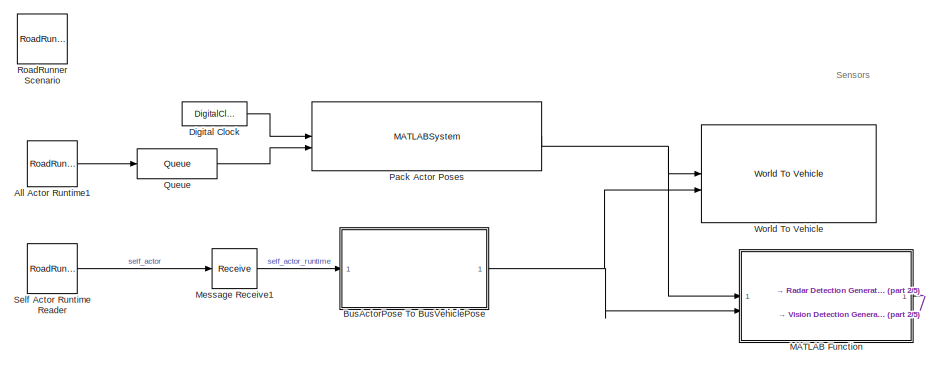
[diagram: root canvas - part 1/5, top left region]
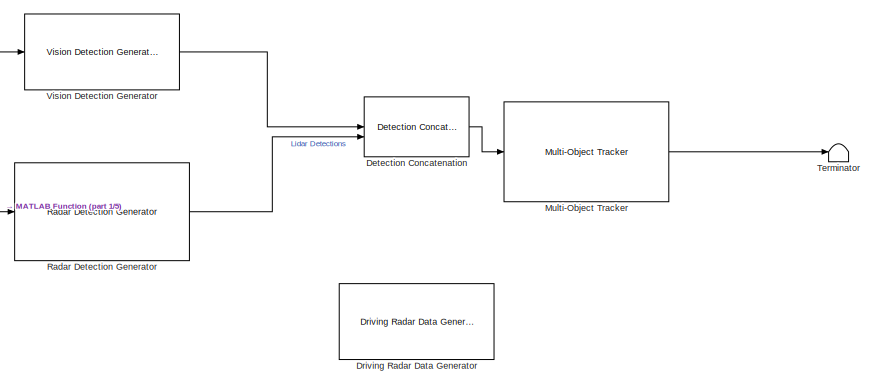
[diagram: root canvas - part 2/5, top center region]
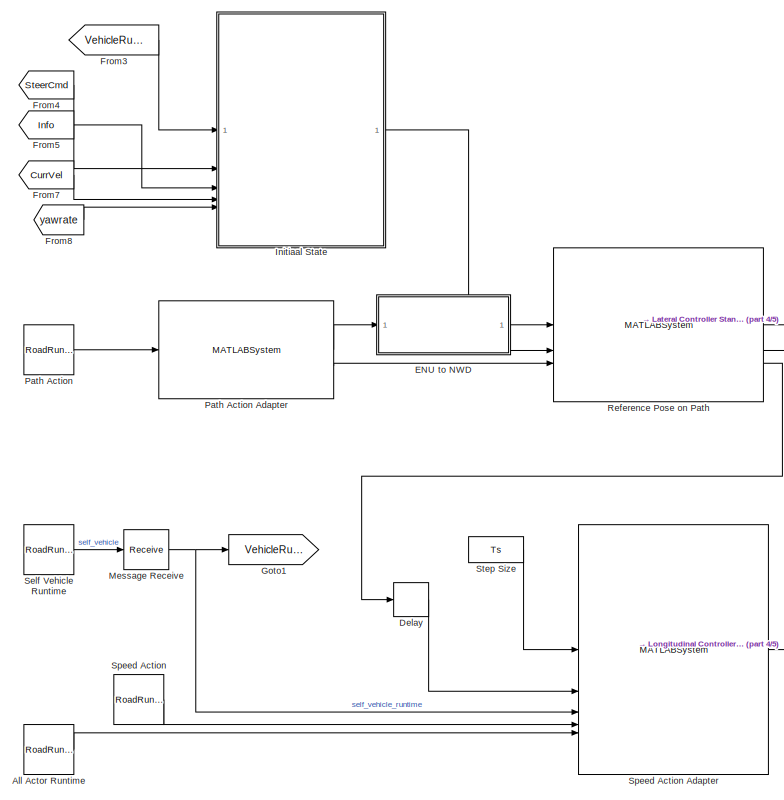
[diagram: root canvas - part 3/5, bottom left region]
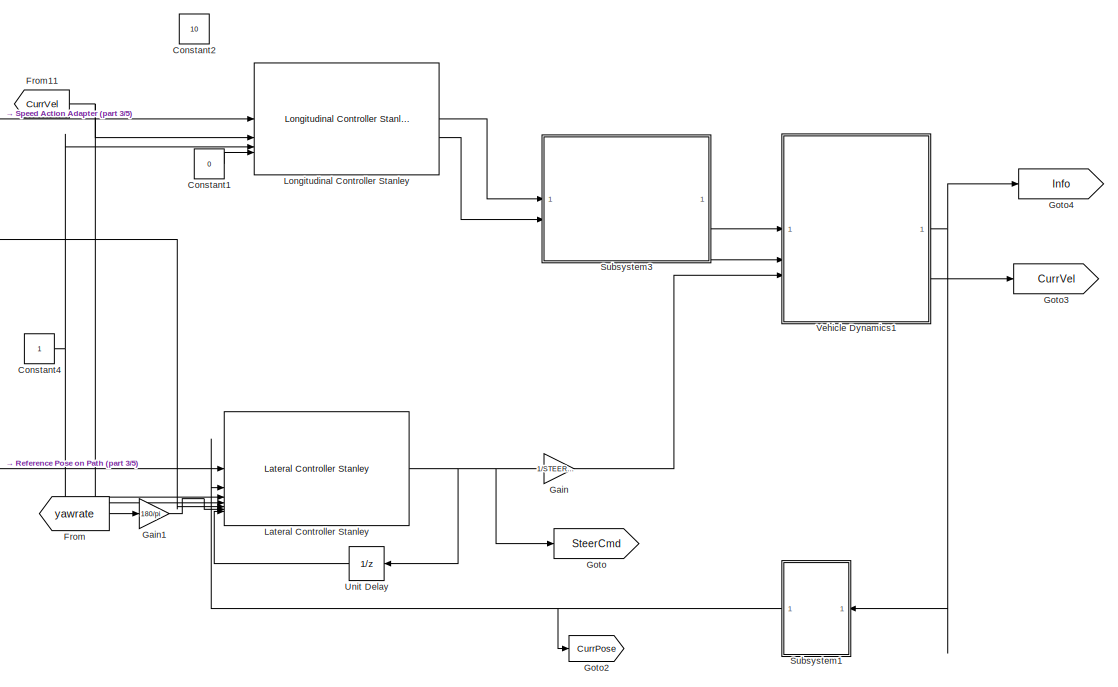
[diagram: root canvas - part 4/5, bottom center region]
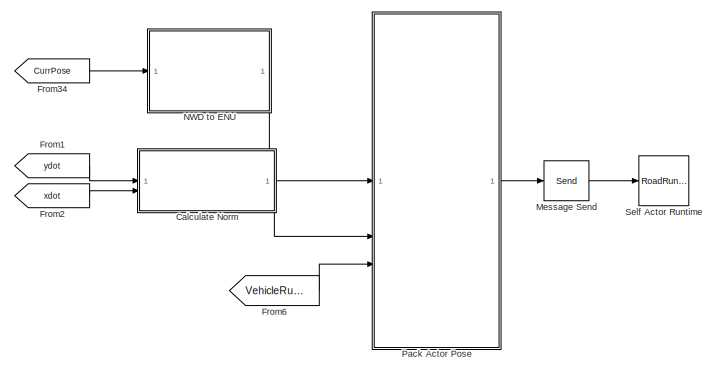
[diagram: root canvas - part 5/5, bottom right region]
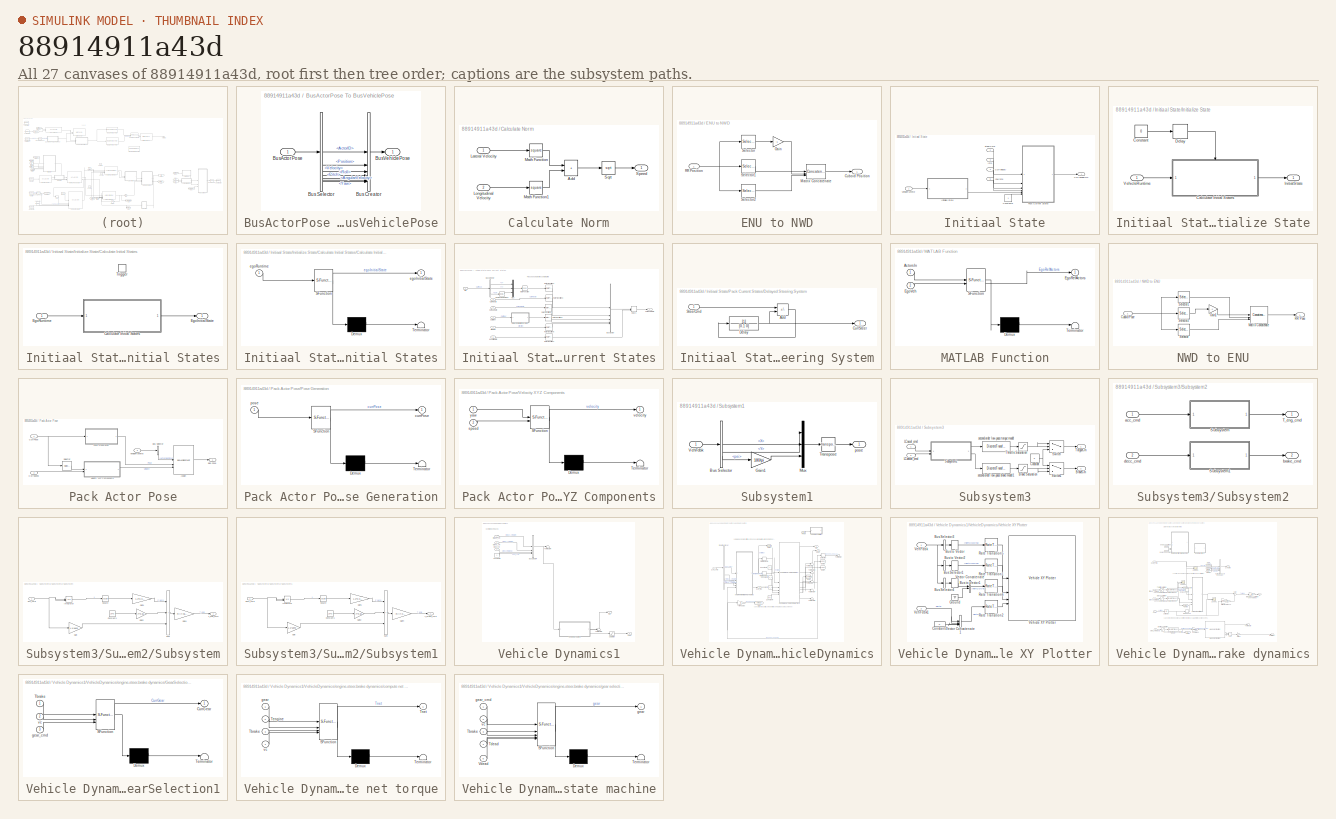
[diagram: thumbnail index - all 27 canvases of the model, root first then tree order]
MODEL slx_88914911a43d
KIND model
CONFIG AbsTol = auto
CONFIG EnableMultiTasking = off
CONFIG FixedStep = 0.001
CONFIG MaxStep = auto
CONFIG MinStep = auto
CONFIG RelTol = 1e-3
CONFIG SampleTimeConstraint = Unconstrained
CONFIG SolverName = VariableStepAuto
CONFIG StartTime = 0
CONFIG StopTime = 1000
BLOCK [Reference] All Actor Runtime  REF=roadrunnerscenario/RoadRunner Scenario
Reader
  SourceBlock = roadrunnerscenario/RoadRunner Scenario\nReader
BLOCK [Reference] All Actor Runtime1  REF=roadrunnerscenario/RoadRunner Scenario
Reader
  SourceBlock = roadrunnerscenario/RoadRunner Scenario\nReader
BLOCK [SubSystem] BusActorPose To BusVehiclePose
BLOCK [BusCreator] BusActorPose To BusVehiclePose/Bus Creator
  DisplayOption = bar
  InheritFromInputs = off
  Inputs = 7
  NonVirtualBus = on
  OutDataTypeStr = Bus: BusVehiclePose
BLOCK [BusSelector] BusActorPose To BusVehiclePose/Bus Selector
  OutputSignals = ActorID,Position,Velocity,Roll,Pitch,Yaw,AngularVelocity
BLOCK [Inport] BusActorPose To BusVehiclePose/BusActorPose
BLOCK [Outport] BusActorPose To BusVehiclePose/BusVehiclePose
BLOCK [SubSystem] Calculate Norm
BLOCK [Sum] Calculate Norm/Add
  IconShape = rectangular
BLOCK [Inport] Calculate Norm/Lateral Velocity
BLOCK [Inport] Calculate Norm/Longitudinal Velocity
  Port = 2
BLOCK [Math] Calculate Norm/Math Function
  Operator = square
BLOCK [Math] Calculate Norm/Math Function1
  Operator = square
BLOCK [Outport] Calculate Norm/Speed
BLOCK [Sqrt] Calculate Norm/Sqrt
BLOCK [Constant] Constant1
  Value = 0
BLOCK [Constant] Constant2
  Value = 10
BLOCK [Constant] Constant4
BLOCK [Delay] Delay
  DelayLength = 1
  InitialCondition = logical(0)
  InputPortMap = u0
BLOCK [Reference] Detection Concatenation  REF=trackingutilitieslib/Detection Concatenation
  SourceBlock = trackingutilitieslib/Detection Concatenation
  SourceType = matlabshared.tracking.internal.DetectionConcatenation
BLOCK [DigitalClock] Digital Clock
  SampleTime = Ts
BLOCK [Reference] Driving Radar Data Generator  REF=drivingscenarioandsensors/Driving Radar Data Generator
  Commented = on
  SourceBlock = drivingscenarioandsensors/Driving Radar Data Generator
  SourceType = drivingRadarDataGenerator
BLOCK [SubSystem] ENU to NWD
BLOCK [Outport] ENU to NWD/Cuboid Position
BLOCK [Gain] ENU to NWD/Gain
  Gain = -1
BLOCK [Concatenate] ENU to NWD/Matrix Concatenate
  ConcatenateDimension = 2
  Mode = Multidimensional array
  NumInputs = 3
BLOCK [Inport] ENU to NWD/RR Position
BLOCK [Selector] ENU to NWD/Selector
  IndexOptions = Select all,Index vector (dialog)
  Indices = [1 3],1
  InputPortWidth = 3
  NumberOfDimensions = 2
  OutputSizes = 1,1
BLOCK [Selector] ENU to NWD/Selector1
  IndexOptions = Select all,Index vector (dialog)
  Indices = [1 3],2
  InputPortWidth = 3
  NumberOfDimensions = 2
  OutputSizes = 1,1
BLOCK [Selector] ENU to NWD/Selector2
  IndexOptions = Select all,Index vector (dialog)
  Indices = [1 3],3
  InputPortWidth = 3
  NumberOfDimensions = 2
  OutputSizes = 1,1
BLOCK [From] From
  GotoTag = yawrate
  IconDisplay = Signal name
  TagVisibility = global
BLOCK [From] From1
  GotoTag = ydot
  TagVisibility = global
BLOCK [From] From11
  GotoTag = CurrVel
BLOCK [From] From2
  GotoTag = xdot
  TagVisibility = global
BLOCK [From] From3
  GotoTag = VehicleRuntime
BLOCK [From] From34
  GotoTag = CurrPose
BLOCK [From] From4
  GotoTag = SteerCmd
BLOCK [From] From5
  GotoTag = Info
BLOCK [From] From6
  GotoTag = VehicleRuntime
BLOCK [From] From7
  GotoTag = CurrVel
BLOCK [From] From8
  GotoTag = yawrate
  IconDisplay = Signal name
  TagVisibility = global
BLOCK [Gain] Gain
  Gain = 1/STEER_RATIO
BLOCK [Gain] Gain1
  Gain = 180/pi
BLOCK [Goto] Goto
  GotoTag = SteerCmd
BLOCK [Goto] Goto1
  GotoTag = VehicleRuntime
BLOCK [Goto] Goto2
  GotoTag = CurrPose
BLOCK [Goto] Goto3
  GotoTag = CurrVel
BLOCK [Goto] Goto4
  GotoTag = Info
BLOCK [SubSystem] Initiaal State
BLOCK [Constant] Initiaal State/Constant5
BLOCK [Outport] Initiaal State/CurrVehicleInfo
BLOCK [Inport] Initiaal State/CurrVelocity
  Port = 4
BLOCK [Inport] Initiaal State/Info
  Port = 3
BLOCK [SubSystem] Initiaal State/Initialize State
BLOCK [SubSystem] Initiaal State/Initialize State/Calculate Initial States
BLOCK [SubSystem] Initiaal State/Initialize State/Calculate Initial States/Calculate Initial States
  ErrorFcn = Stateflow.Translate.translate
  PermitHierarchicalResolution = ExplicitOnly
  SFBlockType = MATLAB Function
  TreatAsAtomicUnit = on
BLOCK [Demux] Initiaal State/Initialize State/Calculate Initial States/Calculate Initial States/ Demux 
  Outputs = 1
BLOCK [S-Function] Initiaal State/Initialize State/Calculate Initial States/Calculate Initial States/ SFunction 
  EnableBusSupport = on
  FunctionName = sf_sfun
  PortCounts = [1 2]
  SFcnIsStateOwnerBlock = off
  SFunctionDeploymentMode = off
  Tag = Stateflow S-Function 22
BLOCK [Terminator] Initiaal State/Initialize State/Calculate Initial States/Calculate Initial States/ Terminator 
BLOCK [Outport] Initiaal State/Initialize State/Calculate Initial States/Calculate Initial States/egoInitialState
BLOCK [Inport] Initiaal State/Initialize State/Calculate Initial States/Calculate Initial States/egoRuntime
BLOCK [Outport] Initiaal State/Initialize State/Calculate Initial States/EgoInitialState
BLOCK [Inport] Initiaal State/Initialize State/Calculate Initial States/EgoRuntime
BLOCK [TriggerPort] Initiaal State/Initialize State/Calculate Initial States/Trigger
  InitialTriggerSignalState = negative
  PortDimensions = 1
  StatesWhenEnabling = held
  VariantControl = (inherit)
BLOCK [Constant] Initiaal State/Initialize State/Constant
  SampleTime = 0.05
  Value = 0
BLOCK [Delay] Initiaal State/Initialize State/Delay
  DelayLength = 1
  InitialCondition = 1
  InputPortMap = u0
BLOCK [Outport] Initiaal State/Initialize State/InitialState
BLOCK [Inport] Initiaal State/Initialize State/VehicleRuntime
BLOCK [SubSystem] Initiaal State/Pack Current States
BLOCK [BusCreator] Initiaal State/Pack Current States/Bus Creator
  DisplayOption = bar
  InheritFromInputs = off
  Inputs = 5
  NonVirtualBus = on
  OutDataTypeStr = Bus: BusVehicleInfo
BLOCK [BusSelector] Initiaal State/Pack Current States/Bus Selector
  OutputSignals = InertFrm.RearAxl.Disp.X,InertFrm.RearAxl.Disp.Y,InertFrm.Cg.Ang.psi
BLOCK [Inport] Initiaal State/Pack Current States/CurrSteer
BLOCK [Outport] Initiaal State/Pack Current States/CurrVehicleInfo
  VectorParamsAs1DForOutWhenUnconnected = off
BLOCK [Inport] Initiaal State/Pack Current States/CurrVelocity
  Port = 3
BLOCK [Inport] Initiaal State/Pack Current States/CurrYawRate
  Port = 4
BLOCK [Delay] Initiaal State/Pack Current States/Delay1
  DelayLength = 1
  InitialConditionSource = Input port
  InputPortMap = u0,p4
BLOCK [SubSystem] Initiaal State/Pack Current States/Delayed Steering System
BLOCK [Sum] Initiaal State/Pack Current States/Delayed Steering System/Add
  IconShape = rectangular
  Inputs = +-
BLOCK [Outport] Initiaal State/Pack Current States/Delayed Steering System/CurrSteer
  VectorParamsAs1DForOutWhenUnconnected = off
BLOCK [TransferFcn] Initiaal State/Pack Current States/Delayed Steering System/Delay
  Denominator = [0.1 0]
BLOCK [Inport] Initiaal State/Pack Current States/Delayed Steering System/SteerCmd
BLOCK [Inport] Initiaal State/Pack Current States/Direction
  Port = 6
BLOCK [Inport] Initiaal State/Pack Current States/Info
  Port = 2
BLOCK [Math] Initiaal State/Pack Current States/Math Function
  Operator = transpose
  SignedPower = on
BLOCK [Mux] Initiaal State/Pack Current States/Mux
  DisplayOption = bar
  Inputs = 3
BLOCK [Reference] Initiaal State/Pack Current States/Radians to Degrees  REF=simulink_extras/Transformations/Radians
to Degrees
  SourceBlock = simulink_extras/Transformations/Radians\nto Degrees
  SourceType = RadiansToDegrees
BLOCK [RateTransition] Initiaal State/Pack Current States/Rate Transition1
  InitialCondition = -1
  OutPortSampleTime = Ts
BLOCK [RateTransition] Initiaal State/Pack Current States/Rate Transition2
  InitialCondition = -1
  OutPortSampleTime = Ts
BLOCK [RateTransition] Initiaal State/Pack Current States/Rate Transition3
  InitialCondition = -1
  OutPortSampleTime = Ts
BLOCK [RateTransition] Initiaal State/Pack Current States/Rate Transition4
  InitialCondition = -1
  OutPortSampleTime = Ts
BLOCK [RateTransition] Initiaal State/Pack Current States/Rate Transition5
  InitialCondition = -1
  OutPortSampleTime = Ts
BLOCK [RateTransition] Initiaal State/Pack Current States/Rate Transition6
  InitialCondition = -1
  OutPortSampleTime = Ts
BLOCK [Inport] Initiaal State/Pack Current States/egoInitialState
  Port = 5
BLOCK [Inport] Initiaal State/SteerCmd
  Port = 2
BLOCK [Inport] Initiaal State/VehicleRuntime
BLOCK [Inport] Initiaal State/yawrate
  Port = 5
BLOCK [Reference] Lateral Controller Stanley  REF=drivingvehiclecontroller/Lateral Controller Stanley
  SourceBlock = drivingvehiclecontroller/Lateral Controller Stanley
  SourceType = Lateral Controller Stanley
BLOCK [Reference] Longitudinal Controller Stanley  REF=drivingvehiclecontroller/Longitudinal Controller Stanley
  SourceBlock = drivingvehiclecontroller/Longitudinal Controller Stanley
  SourceType = Longitudinal Controller Stanley
BLOCK [SubSystem] MATLAB Function
  ErrorFcn = Stateflow.Translate.translate
  LibrarySourceBlock = simulink/User-Defined\nFunctions/MATLAB Function
  PermitHierarchicalResolution = ExplicitOnly
  SFBlockType = MATLAB Function
  TreatAsAtomicUnit = on
BLOCK [Demux] MATLAB Function/ Demux 
  Outputs = 1
BLOCK [S-Function] MATLAB Function/ SFunction 
  EnableBusSupport = on
  FunctionName = sf_sfun
  PortCounts = [2 2]
  SFcnIsStateOwnerBlock = off
  SFunctionDeploymentMode = off
  Tag = Stateflow S-Function 2
BLOCK [Terminator] MATLAB Function/ Terminator 
BLOCK [Inport] MATLAB Function/ActorsIn
BLOCK [Outport] MATLAB Function/EgoRefActors
BLOCK [Inport] MATLAB Function/EgoVeh
  Port = 2
BLOCK [Receive] Message Receive
  InputPortMap = u0
  InputPortMessageModes = m
  OutputPortMap = o1
BLOCK [Receive] Message Receive1
  InputPortMap = u0
  InputPortMessageModes = m
  OutputPortMap = o1
  SampleTime = Ts
BLOCK [Send] Message Send
  InputPortMap = u1
  OutputPortMessageModes = m
BLOCK [Reference] Multi-Object Tracker  REF=drivinglib/Multi-Object Tracker
  SourceBlock = drivinglib/Multi-Object Tracker
  SourceType = multiObjectTracker
BLOCK [SubSystem] NWD to ENU
BLOCK [Inport] NWD to ENU/Cuboid Pose
BLOCK [Gain] NWD to ENU/Gain1
  Gain = -1
BLOCK [Concatenate] NWD to ENU/Matrix Concatenate
  ConcatenateDimension = 2
  Mode = Multidimensional array
  NumInputs = 3
BLOCK [Outport] NWD to ENU/RR Pose
BLOCK [Selector] NWD to ENU/Selector
  IndexOptions = Index vector (dialog)
  Indices = 3
  InputPortWidth = 3
  OutputSizes = 1
BLOCK [Selector] NWD to ENU/Selector1
  IndexOptions = Index vector (dialog)
  Indices = 1
  InputPortWidth = 3
  OutputSizes = 1
BLOCK [Selector] NWD to ENU/Selector2
  IndexOptions = Index vector (dialog)
  Indices = 2
  InputPortWidth = 3
  OutputSizes = 1
BLOCK [SubSystem] Pack Actor Pose
BLOCK [BusAssignment] Pack Actor Pose/Assign
  AssignedSignals = Pose,Velocity
BLOCK [BusSelector] Pack Actor Pose/Bus Selector
  OutputSignals = ActorRuntime
BLOCK [Inport] Pack Actor Pose/CurrPose
BLOCK [Inport] Pack Actor Pose/CurrSpeed
  Port = 2
BLOCK [Outport] Pack Actor Pose/Ego Pose
BLOCK [SubSystem] Pack Actor Pose/Pose Generation
  ErrorFcn = Stateflow.Translate.translate
  PermitHierarchicalResolution = ExplicitOnly
  SFBlockType = MATLAB Function
  TreatAsAtomicUnit = on
BLOCK [Demux] Pack Actor Pose/Pose Generation/ Demux 
  Outputs = 1
BLOCK [S-Function] Pack Actor Pose/Pose Generation/ SFunction 
  EnableBusSupport = on
  FunctionName = sf_sfun
  PortCounts = [1 2]
  SFcnIsStateOwnerBlock = off
  SFunctionDeploymentMode = off
  Tag = Stateflow S-Function 23
BLOCK [Terminator] Pack Actor Pose/Pose Generation/ Terminator 
BLOCK [Outport] Pack Actor Pose/Pose Generation/currPose
BLOCK [Inport] Pack Actor Pose/Pose Generation/pose
BLOCK [Selector] Pack Actor Pose/Selector
  IndexOptions = Index vector (dialog)
  Indices = 3
  InputPortWidth = 3
  OutputSizes = 1
BLOCK [Inport] Pack Actor Pose/VehicleRuntime
  Port = 3
BLOCK [SubSystem] Pack Actor Pose/Velocity XYZ Components
  ErrorFcn = Stateflow.Translate.translate
  PermitHierarchicalResolution = ExplicitOnly
  SFBlockType = MATLAB Function
  TreatAsAtomicUnit = on
BLOCK [Demux] Pack Actor Pose/Velocity XYZ Components/ Demux 
  Outputs = 1
BLOCK [S-Function] Pack Actor Pose/Velocity XYZ Components/ SFunction 
  EnableBusSupport = on
  FunctionName = sf_sfun
  PortCounts = [2 2]
  SFcnIsStateOwnerBlock = off
  SFunctionDeploymentMode = off
  Tag = Stateflow S-Function 24
BLOCK [Terminator] Pack Actor Pose/Velocity XYZ Components/ Terminator 
BLOCK [Inport] Pack Actor Pose/Velocity XYZ Components/speed
  Port = 2
BLOCK [Outport] Pack Actor Pose/Velocity XYZ Components/velocity
BLOCK [Inport] Pack Actor Pose/Velocity XYZ Components/yaw
BLOCK [MATLABSystem] Pack Actor Poses
  ActorProfiles = struct( 'ActorID', 1, 'ClassID', 1, 'Length', 4.7, 'Width', 1.8, 'Height', 1.4, 'OriginOffset', [ 0, 0, 0 ], 'FrontOverhang', 0, 'RearOverhang', 0, 'Wheelbase', 0, 'Color', [ 0, 0, 0 ] )
  DefaultActorPoses = Simulink.Bus.createMATLABStruct( "BusActors" )
  EgoActorID = 1
  InputPortMessageModes = n,m
  MaskDisplay = disp(['HelperPack' char(10) 'DrivingScenarioPoses']);\nport_label('input',1,'time');\nport_label('input',2,'msgs');\nport_label('output',1,'TargetPoses');
  MaskType = HelperPackDrivingScenarioPoses
  System = HelperPackDrivingScenarioPoses
BLOCK [Reference] Path Action  REF=roadrunnerscenario/RoadRunner Scenario
Reader
  SourceBlock = roadrunnerscenario/RoadRunner Scenario\nReader
BLOCK [MATLABSystem] Path Action Adapter
  InputPortMessageModes = m
  MaskDisplay = disp(['HelperPathActionAdapter' char(10) '' char(10) '']);\nport_label('input',1,'PathAction');\nport_label('output',1,'Path');\nport_label('output',2,'NumPoints');
  MaskType = HelperPathActionAdapter
  SimulateUsing = Code generation
  System = HelperPathActionAdapter
BLOCK [Queue] Queue
  Capacity = maxNumActors
  InputPortMap = u0
  InputPortMessageModes = m
  OutputPortMap = o5
  OutputPortMessageModes = m
  OverwriteOldest = on
BLOCK [Reference] Radar Detection Generator  REF=drivingscenarioandsensors/Radar Detection Generator
  SourceBlock = drivingscenarioandsensors/Radar Detection Generator
  SourceType = radarDetectionGenerator
BLOCK [MATLABSystem] Reference Pose on Path
  MaskDisplay = disp(['HelperReferencePoseOnPath' char(10) '' char(10) '' char(10) '' char(10) '']);\nport_label('input',1,'PrevVehicleInfo');\nport_label('input',2,'Trajectory');\nport_label('input',3,'NumTrajPoints');\nport_label('output',1,'RefPointOnPath');\nport_label('output',2,'RefCurvature');\nport_label('output',3,'IsGoalReached');
  MaskType = HelperReferencePoseOnPath
  System = HelperReferencePoseOnPath
BLOCK [Reference] RoadRunner Scenario  REF=roadrunnerscenario/RoadRunner Scenario
  SourceBlock = roadrunnerscenario/RoadRunner Scenario
BLOCK [Reference] Self Actor Runtime  REF=roadrunnerscenario/RoadRunner Scenario
Writer
  SourceBlock = roadrunnerscenario/RoadRunner Scenario\nWriter
BLOCK [Reference] Self Actor Runtime Reader  REF=roadrunnerscenario/RoadRunner Scenario
Reader
  SourceBlock = roadrunnerscenario/RoadRunner Scenario\nReader
BLOCK [Reference] Self Vehicle Runtime  REF=roadrunnerscenario/RoadRunner Scenario
Reader
  SourceBlock = roadrunnerscenario/RoadRunner Scenario\nReader
BLOCK [Reference] Speed Action  REF=roadrunnerscenario/RoadRunner Scenario
Reader
  SourceBlock = roadrunnerscenario/RoadRunner Scenario\nReader
BLOCK [MATLABSystem] Speed Action Adapter
  InputPortMessageModes = n,n,n,m,m
  MaskDisplay = disp(['HelperSpeedActionAdapter' char(10) '' char(10) '']);\nport_label('input',1,'timestep');\nport_label('input',2,'stopVehicle');\nport_label('input',3,'vehicleRuntime');\nport_label('input',4,'msgSpeedAction');\nport_label('input',5,'msgAllVehicleRuntime');\nport_label('output',1,'currentSpeed');
  MaskType = HelperSpeedActionAdapter
  System = HelperSpeedActionAdapter
BLOCK [Constant] Step Size
  Value = Ts
BLOCK [SubSystem] Subsystem1
  NameLocation = top
BLOCK [BusSelector] Subsystem1/Bus Selector
  OutputSignals = InertFrm.Cg.Disp.X,InertFrm.Cg.Disp.Y,InertFrm.Cg.Ang.psi
BLOCK [Gain] Subsystem1/Gain1
  Gain = 180/pi
BLOCK [Mux] Subsystem1/Mux
  DisplayOption = bar
  Inputs = 3
BLOCK [Math] Subsystem1/Transpose
  Operator = transpose
  SignedPower = on
BLOCK [Inport] Subsystem1/VehFdbk
BLOCK [Outport] Subsystem1/pose
BLOCK [SubSystem] Subsystem3
BLOCK [Saturate] Subsystem3/Brake Saturation
  LowerLimit = MIN_BRAKE
  UpperLimit = MAX_BRAKE
BLOCK [Outport] Subsystem3/BrakeCm
  Port = 2
BLOCK [Constant] Subsystem3/Constant
  Value = 0
BLOCK [Inport] Subsystem3/LCaccel_cmd
BLOCK [Inport] Subsystem3/LCdeccel_cmd
  Port = 2
BLOCK [SubSystem] Subsystem3/Subsystem2
BLOCK [SubSystem] Subsystem3/Subsystem2/Subsystem
BLOCK [Constant] Subsystem3/Subsystem2/Subsystem/Constant1
  Value = 1843
BLOCK [Gain] Subsystem3/Subsystem2/Subsystem/Gain
  Gain = 1.1*1843
BLOCK [Gain] Subsystem3/Subsystem2/Subsystem/Gain1
  Gain = 1.2*0.3*2/2
BLOCK [Gain] Subsystem3/Subsystem2/Subsystem/Gain2
  Gain = 0.7*9.81
BLOCK [Gain] Subsystem3/Subsystem2/Subsystem/Gain4
  Gain = R/(7.05*0.8)
BLOCK [Integrator] Subsystem3/Subsystem2/Subsystem/Integrator
  ExternalReset = falling
BLOCK [Math] Subsystem3/Subsystem2/Subsystem/Square
  Operator = square
BLOCK [Sum] Subsystem3/Subsystem2/Subsystem/Sum
  IconShape = rectangular
  Inputs = +++
BLOCK [Outport] Subsystem3/Subsystem2/Subsystem/T_eng_cmd
BLOCK [Inport] Subsystem3/Subsystem2/Subsystem/acc_cmd
BLOCK [SubSystem] Subsystem3/Subsystem2/Subsystem1
BLOCK [Constant] Subsystem3/Subsystem2/Subsystem1/Constant1
  Value = 1843
BLOCK [Gain] Subsystem3/Subsystem2/Subsystem1/Gain
  Gain = 1.1*1843
BLOCK [Gain] Subsystem3/Subsystem2/Subsystem1/Gain1
  Gain = 1.2*0.3*2/2
BLOCK [Gain] Subsystem3/Subsystem2/Subsystem1/Gain2
  Gain = 0.7*9.81
BLOCK [Gain] Subsystem3/Subsystem2/Subsystem1/Gain4
  Gain = -R/(7.05*0.8)
BLOCK [Integrator] Subsystem3/Subsystem2/Subsystem1/Integrator
  ExternalReset = falling
BLOCK [Math] Subsystem3/Subsystem2/Subsystem1/Square
  Operator = square
BLOCK [Sum] Subsystem3/Subsystem2/Subsystem1/Sum
  IconShape = rectangular
  Inputs = +++
BLOCK [Outport] Subsystem3/Subsystem2/Subsystem1/T_brake_cmd
BLOCK [Inport] Subsystem3/Subsystem2/Subsystem1/decc_cmd
BLOCK [Outport] Subsystem3/Subsystem2/T_eng_cmd
BLOCK [Inport] Subsystem3/Subsystem2/acc_cmd
BLOCK [Outport] Subsystem3/Subsystem2/brake_cmd
  Port = 2
BLOCK [Inport] Subsystem3/Subsystem2/decc_cmd
  Port = 2
BLOCK [Switch] Subsystem3/Switch
  Criteria = u2 > Threshold
  InputSameDT = off
  SaturateOnIntegerOverflow = off
BLOCK [Switch] Subsystem3/Switch1
  Criteria = u2 > Threshold
  InputSameDT = off
  SaturateOnIntegerOverflow = off
BLOCK [Saturate] Subsystem3/Throttle Saturation
  LowerLimit = MIN_TORQUE
  UpperLimit = MAX_TORQUE
BLOCK [Outport] Subsystem3/TorgueCm
BLOCK [DiscreteTransferFcn] Subsystem3/second-order low-pass brake model1
  Commented = through
  Denominator = NUMD_B
  InputPortMap = u0
  Numerator = DEND_B
  SampleTime = ts
BLOCK [DiscreteTransferFcn] Subsystem3/second-order low-pass torque model
  Commented = through
  Denominator = NUMD_T
  InputPortMap = u0
  Numerator = DEND_T
  SampleTime = ts
BLOCK [Terminator] Terminator
BLOCK [UnitDelay] Unit Delay
  HasFrameUpgradeWarning = on
  NameLocation = top
  SampleTime = -1
BLOCK [SubSystem] Vehicle Dynamics1
BLOCK [BusCreator] Vehicle Dynamics1/Bus Creator4
  DisplayOption = bar
  InheritFromInputs = on
  Inputs = 4
BLOCK [Constant] Vehicle Dynamics1/Constant9
BLOCK [Outport] Vehicle Dynamics1/Info
BLOCK [Saturate] Vehicle Dynamics1/Saturation
  LowerLimit = 0.001
  UpperLimit = inf
BLOCK [Terminator] Vehicle Dynamics1/Terminator2
BLOCK [Terminator] Vehicle Dynamics1/Terminator4
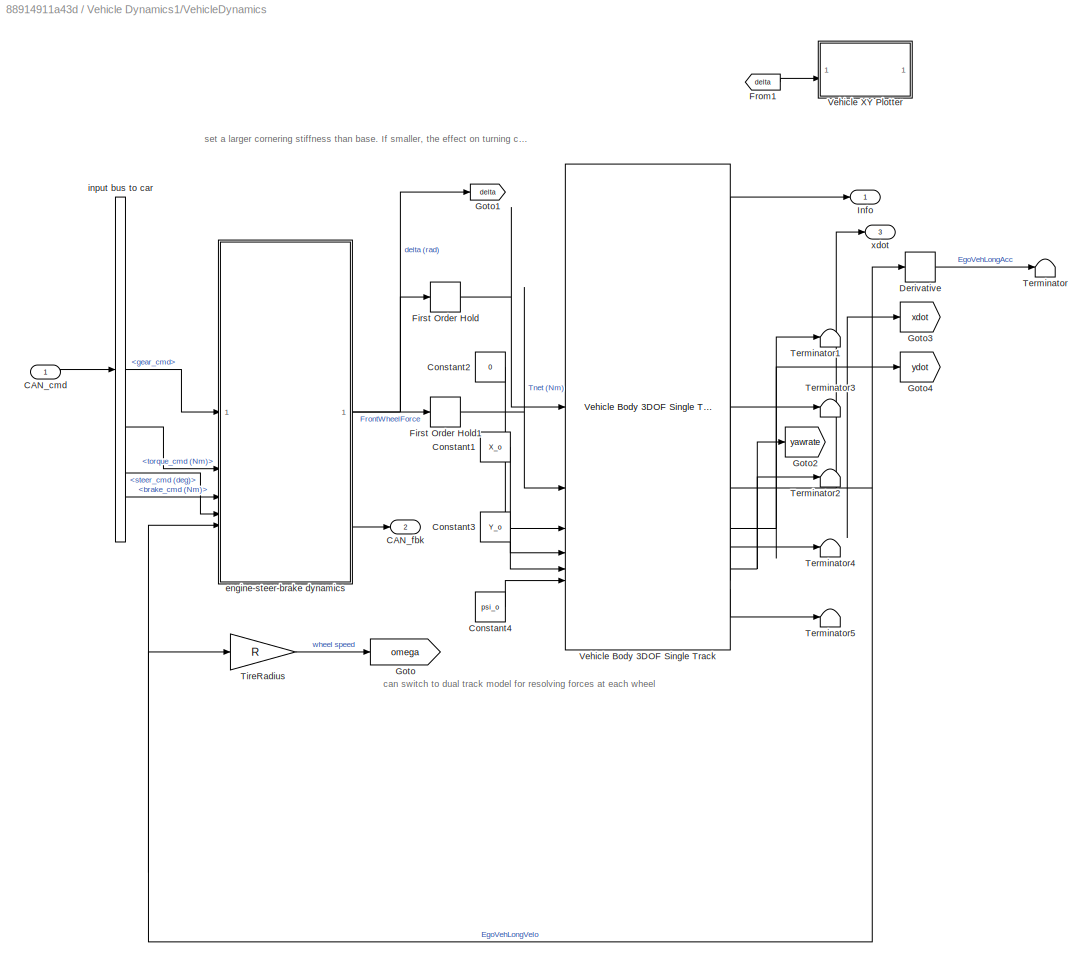
BLOCK [SubSystem] Vehicle Dynamics1/VehicleDynamics
BLOCK [Inport] Vehicle Dynamics1/VehicleDynamics/CAN_cmd
BLOCK [Outport] Vehicle Dynamics1/VehicleDynamics/CAN_fbk
  Port = 2
  VectorParamsAs1DForOutWhenUnconnected = off
BLOCK [Constant] Vehicle Dynamics1/VehicleDynamics/Constant1
  Value = X_o
BLOCK [Constant] Vehicle Dynamics1/VehicleDynamics/Constant2
  Value = 0
BLOCK [Constant] Vehicle Dynamics1/VehicleDynamics/Constant3
  Value = Y_o
BLOCK [Constant] Vehicle Dynamics1/VehicleDynamics/Constant4
  Value = psi_o
BLOCK [Derivative] Vehicle Dynamics1/VehicleDynamics/Derivative
BLOCK [FirstOrderHold] Vehicle Dynamics1/VehicleDynamics/First Order Hold
  ErrorTolerance = inf
BLOCK [FirstOrderHold] Vehicle Dynamics1/VehicleDynamics/First Order Hold1
  ErrorTolerance = inf
BLOCK [From] Vehicle Dynamics1/VehicleDynamics/From1
  Commented = on
  GotoTag = delta
BLOCK [Goto] Vehicle Dynamics1/VehicleDynamics/Goto
  GotoTag = omega
BLOCK [Goto] Vehicle Dynamics1/VehicleDynamics/Goto1
  GotoTag = delta
BLOCK [Goto] Vehicle Dynamics1/VehicleDynamics/Goto2
  GotoTag = yawrate
  TagVisibility = global
BLOCK [Goto] Vehicle Dynamics1/VehicleDynamics/Goto3
  GotoTag = xdot
  TagVisibility = global
BLOCK [Goto] Vehicle Dynamics1/VehicleDynamics/Goto4
  GotoTag = ydot
  TagVisibility = global
BLOCK [Outport] Vehicle Dynamics1/VehicleDynamics/Info
BLOCK [Terminator] Vehicle Dynamics1/VehicleDynamics/Terminator
BLOCK [Terminator] Vehicle Dynamics1/VehicleDynamics/Terminator1
BLOCK [Terminator] Vehicle Dynamics1/VehicleDynamics/Terminator2
BLOCK [Terminator] Vehicle Dynamics1/VehicleDynamics/Terminator3
BLOCK [Terminator] Vehicle Dynamics1/VehicleDynamics/Terminator4
BLOCK [Terminator] Vehicle Dynamics1/VehicleDynamics/Terminator5
BLOCK [Gain] Vehicle Dynamics1/VehicleDynamics/TireRadius
  Gain = R
BLOCK [Reference] Vehicle Dynamics1/VehicleDynamics/Vehicle Body 3DOF Single Track  REF=autolibshared/Vehicle Body 3DOF Single Track
  SourceBlock = autolibshared/Vehicle Body 3DOF Single Track
  SourceType = Vehicle Body 3DOF Lateral
BLOCK [SubSystem] Vehicle Dynamics1/VehicleDynamics/Vehicle XY Plotter
  Commented = on
BLOCK [BusSelector] Vehicle Dynamics1/VehicleDynamics/Vehicle XY Plotter/Bus Selector1
  OutputAsBus = on
  OutputSignals = InertFrm.Cg.Ang.phi,InertFrm.Cg.Ang.theta,InertFrm.Cg.Ang.psi
BLOCK [BusSelector] Vehicle Dynamics1/VehicleDynamics/Vehicle XY Plotter/Bus Selector3
  OutputAsBus = on
  OutputSignals = InertFrm.Geom.Disp.X,InertFrm.Geom.Disp.Y,InertFrm.Geom.Disp.Z
BLOCK [BusSelector] Vehicle Dynamics1/VehicleDynamics/Vehicle XY Plotter/Bus Selector4
  OutputAsBus = on
  OutputSignals = InertFrm.Cg.Vel.Xdot,InertFrm.Cg.Vel.Ydot
BLOCK [BusToVector] Vehicle Dynamics1/VehicleDynamics/Vehicle XY Plotter/Bus to Vector
BLOCK [BusToVector] Vehicle Dynamics1/VehicleDynamics/Vehicle XY Plotter/Bus to Vector1
BLOCK [BusToVector] Vehicle Dynamics1/VehicleDynamics/Vehicle XY Plotter/Bus to Vector2
BLOCK [Constant] Vehicle Dynamics1/VehicleDynamics/Vehicle XY Plotter/Constant4
  Value = 0
BLOCK [Ground] Vehicle Dynamics1/VehicleDynamics/Vehicle XY Plotter/Ground
BLOCK [RateTransition] Vehicle Dynamics1/VehicleDynamics/Vehicle XY Plotter/Rate Transition1
  OutPortSampleTime = pltDT
BLOCK [RateTransition] Vehicle Dynamics1/VehicleDynamics/Vehicle XY Plotter/Rate Transition2
  OutPortSampleTime = pltDT
BLOCK [RateTransition] Vehicle Dynamics1/VehicleDynamics/Vehicle XY Plotter/Rate Transition5
  OutPortSampleTime = pltDT
BLOCK [RateTransition] Vehicle Dynamics1/VehicleDynamics/Vehicle XY Plotter/Rate Transition6
  OutPortSampleTime = pltDT
BLOCK [Concatenate] Vehicle Dynamics1/VehicleDynamics/Vehicle XY Plotter/Vector Concatenate
BLOCK [Concatenate] Vehicle Dynamics1/VehicleDynamics/Vehicle XY Plotter/Vector Concatenate1
  NumInputs = 4
BLOCK [Inport] Vehicle Dynamics1/VehicleDynamics/Vehicle XY Plotter/VehFdbk
BLOCK [Inport] Vehicle Dynamics1/VehicleDynamics/Vehicle XY Plotter/VehFdbk1
  Port = 2
BLOCK [Reference] Vehicle Dynamics1/VehicleDynamics/Vehicle XY Plotter/Vehicle XY Plotter  REF=vehdynlibviscommon/Vehicle XY Plotter
  SourceBlock = vehdynlibviscommon/Vehicle XY Plotter
  SourceType = Vehicle XY Plotter
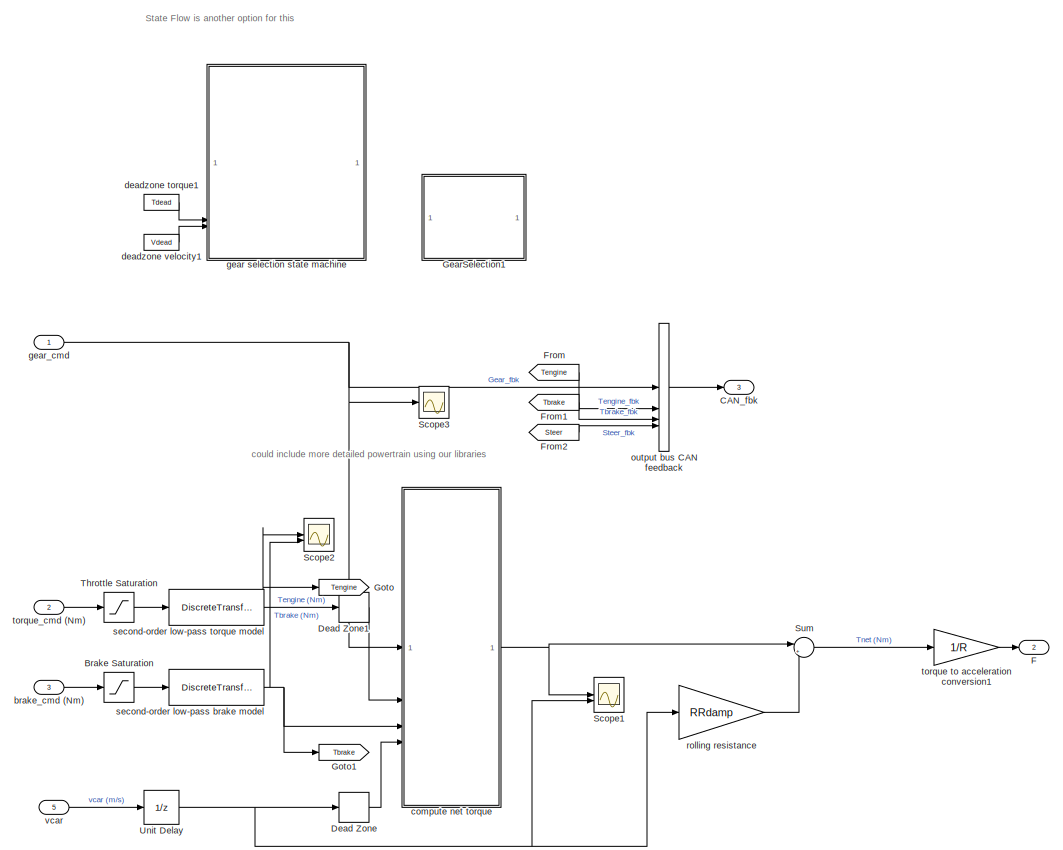
[diagram: Vehicle Dynamics1/VehicleDynamics/engine-steer-brake dynamics - part 1/2, most of the canvas]
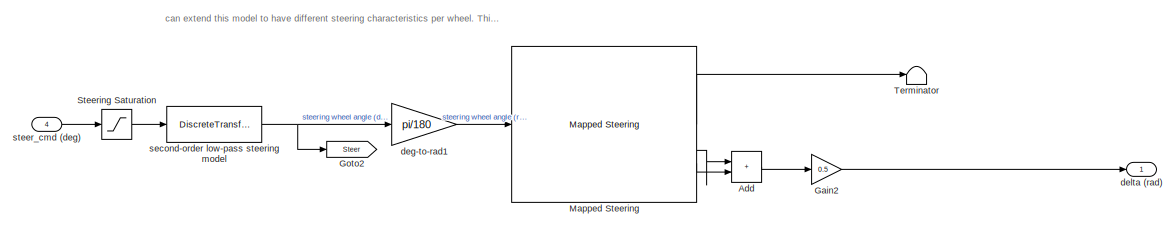
[diagram: Vehicle Dynamics1/VehicleDynamics/engine-steer-brake dynamics - part 2/2, full width, bottom band]
BLOCK [SubSystem] Vehicle Dynamics1/VehicleDynamics/engine-steer-brake dynamics
BLOCK [Sum] Vehicle Dynamics1/VehicleDynamics/engine-steer-brake dynamics/Add
  IconShape = rectangular
BLOCK [Saturate] Vehicle Dynamics1/VehicleDynamics/engine-steer-brake dynamics/Brake Saturation
  LowerLimit = MIN_BRAKE
  UpperLimit = MAX_BRAKE
BLOCK [Outport] Vehicle Dynamics1/VehicleDynamics/engine-steer-brake dynamics/CAN_fbk
  Port = 3
  VectorParamsAs1DForOutWhenUnconnected = off
BLOCK [DeadZone] Vehicle Dynamics1/VehicleDynamics/engine-steer-brake dynamics/Dead Zone
  LowerValue = -Vdead
  UpperValue = Vdead
BLOCK [DeadZone] Vehicle Dynamics1/VehicleDynamics/engine-steer-brake dynamics/Dead Zone1
  LowerValue = -Tdead
  UpperValue = Tdead
BLOCK [Outport] Vehicle Dynamics1/VehicleDynamics/engine-steer-brake dynamics/F
  Port = 2
  VectorParamsAs1DForOutWhenUnconnected = off
BLOCK [From] Vehicle Dynamics1/VehicleDynamics/engine-steer-brake dynamics/From
  GotoTag = Tengine
BLOCK [From] Vehicle Dynamics1/VehicleDynamics/engine-steer-brake dynamics/From1
  GotoTag = Tbrake
BLOCK [From] Vehicle Dynamics1/VehicleDynamics/engine-steer-brake dynamics/From2
  GotoTag = Steer
BLOCK [Gain] Vehicle Dynamics1/VehicleDynamics/engine-steer-brake dynamics/Gain2
  Gain = 0.5
BLOCK [SubSystem] Vehicle Dynamics1/VehicleDynamics/engine-steer-brake dynamics/GearSelection1
  Commented = on
  ErrorFcn = Stateflow.Translate.translate
  PermitHierarchicalResolution = ExplicitOnly
  PortSchema = {"entries":[{"content":{"sides":[{"content":{"connectorIds":["In3","In2","In1"]},"type":"ConnectorPlacement.EquallySpacedRectSide","uuid":"465e5722-891f-481b-b3b6-2b8339e8e743"},{"content":{"connectorIds":["Out1"],"side":"RIGHT"},"type":"ConnectorPlacement.EquallySpacedRectSide","uuid":"28ef13cd-41d9-4e2e-8cd9-9157abf573a9"},{"content":{"connectorIds":[],"side":"TOP"},"type":"ConnectorPlacement.Eq...<+396ch>
  SFBlockType = Chart
  SystemSampleTime = ts
  TreatAsAtomicUnit = on
BLOCK [Demux] Vehicle Dynamics1/VehicleDynamics/engine-steer-brake dynamics/GearSelection1/ Demux 
  Outputs = 1
BLOCK [S-Function] Vehicle Dynamics1/VehicleDynamics/engine-steer-brake dynamics/GearSelection1/ SFunction 
  EnableBusSupport = on
  FunctionName = sf_sfun
  Parameters = DefaultGear,Tdead,Vdead
  PortCounts = [3 2]
  SFcnIsStateOwnerBlock = off
  SFunctionDeploymentMode = off
  Tag = Stateflow S-Function 17
BLOCK [Terminator] Vehicle Dynamics1/VehicleDynamics/engine-steer-brake dynamics/GearSelection1/ Terminator 
BLOCK [Outport] Vehicle Dynamics1/VehicleDynamics/engine-steer-brake dynamics/GearSelection1/CurrGear
BLOCK [Inport] Vehicle Dynamics1/VehicleDynamics/engine-steer-brake dynamics/GearSelection1/Tbrake
BLOCK [Inport] Vehicle Dynamics1/VehicleDynamics/engine-steer-brake dynamics/GearSelection1/gear_cmd
  Port = 3
BLOCK [Inport] Vehicle Dynamics1/VehicleDynamics/engine-steer-brake dynamics/GearSelection1/vc
  Port = 2
BLOCK [Goto] Vehicle Dynamics1/VehicleDynamics/engine-steer-brake dynamics/Goto
  GotoTag = Tengine
BLOCK [Goto] Vehicle Dynamics1/VehicleDynamics/engine-steer-brake dynamics/Goto1
  GotoTag = Tbrake
BLOCK [Goto] Vehicle Dynamics1/VehicleDynamics/engine-steer-brake dynamics/Goto2
  GotoTag = Steer
BLOCK [Reference] Vehicle Dynamics1/VehicleDynamics/engine-steer-brake dynamics/Mapped Steering  REF=vehdynlibsteering/Mapped Steering
  SourceBlock = vehdynlibsteering/Mapped Steering
  SourceType = Mapped Steering
BLOCK [Scope] Vehicle Dynamics1/VehicleDynamics/engine-steer-brake dynamics/Scope1
  Floating = off
  NumInputPorts = 2
  ScopeSpecificationString = Simulink.scopes.TimeScopeBlockCfg('CurrentConfiguration', extmgr.ConfigurationSet(extmgr.Configuration('Core','General UI',true),extmgr.Configuration('Core','Source UI',true),extmgr.Configuration('Sources','WiredSimulink',true,'DataLoggingVariableName','ScopeData3'),extmgr.Configuration('Visuals','Time Domain',true,'SerializedDisplays',{struct('MinYLimReal','-4915.04892','MaxYLimReal','4915.04453'...<+2339ch>
BLOCK [Scope] Vehicle Dynamics1/VehicleDynamics/engine-steer-brake dynamics/Scope2
  Floating = off
  NumInputPorts = 2
  ScopeSpecificationString = Simulink.scopes.TimeScopeBlockCfg('CurrentConfiguration', extmgr.ConfigurationSet(extmgr.Configuration('Core','General UI',true),extmgr.Configuration('Core','Source UI',true),extmgr.Configuration('Sources','WiredSimulink',true,'DataLoggingVariableName','ScopeData2'),extmgr.Configuration('Visuals','Time Domain',true,'SerializedDisplays',{struct('MinYLimReal','-26.90714','MaxYLimReal','242.16425','Y...<+1681ch>
BLOCK [Scope] Vehicle Dynamics1/VehicleDynamics/engine-steer-brake dynamics/Scope3
  Floating = off
  NumInputPorts = 1
  ScopeSpecificationString = Simulink.scopes.TimeScopeBlockCfg('CurrentConfiguration', extmgr.ConfigurationSet(extmgr.Configuration('Core','General UI',true),extmgr.Configuration('Core','Source UI',true),extmgr.Configuration('Sources','WiredSimulink',true,'DataLoggingVariableName','ScopeData3'),extmgr.Configuration('Visuals','Time Domain',true,'SerializedDisplays',{struct('MinYLimReal','0.9','MaxYLimReal','1.1','YLabelReal','...<+1393ch>
BLOCK [Saturate] Vehicle Dynamics1/VehicleDynamics/engine-steer-brake dynamics/Steering Saturation
  LowerLimit = MIN_STEER
  UpperLimit = MAX_STEER
BLOCK [Sum] Vehicle Dynamics1/VehicleDynamics/engine-steer-brake dynamics/Sum
  Inputs = |+-
BLOCK [Terminator] Vehicle Dynamics1/VehicleDynamics/engine-steer-brake dynamics/Terminator
BLOCK [Saturate] Vehicle Dynamics1/VehicleDynamics/engine-steer-brake dynamics/Throttle Saturation
  LowerLimit = MIN_TORQUE
  UpperLimit = MAX_TORQUE
BLOCK [UnitDelay] Vehicle Dynamics1/VehicleDynamics/engine-steer-brake dynamics/Unit Delay
  HasFrameUpgradeWarning = on
  SampleTime = -1
BLOCK [Inport] Vehicle Dynamics1/VehicleDynamics/engine-steer-brake dynamics/brake_cmd (Nm)
  Port = 3
BLOCK [SubSystem] Vehicle Dynamics1/VehicleDynamics/engine-steer-brake dynamics/compute net torque
  ErrorFcn = Stateflow.Translate.translate
  PermitHierarchicalResolution = ExplicitOnly
  SFBlockType = MATLAB Function
  SystemSampleTime = ts
  TreatAsAtomicUnit = on
BLOCK [Demux] Vehicle Dynamics1/VehicleDynamics/engine-steer-brake dynamics/compute net torque/ Demux 
  Outputs = 1
BLOCK [S-Function] Vehicle Dynamics1/VehicleDynamics/engine-steer-brake dynamics/compute net torque/ SFunction 
  EnableBusSupport = on
  FunctionName = sf_sfun
  PortCounts = [4 2]
  SFcnIsStateOwnerBlock = off
  SFunctionDeploymentMode = off
  Tag = Stateflow S-Function 18
BLOCK [Terminator] Vehicle Dynamics1/VehicleDynamics/engine-steer-brake dynamics/compute net torque/ Terminator 
BLOCK [Inport] Vehicle Dynamics1/VehicleDynamics/engine-steer-brake dynamics/compute net torque/Tbrake
  Port = 3
BLOCK [Inport] Vehicle Dynamics1/VehicleDynamics/engine-steer-brake dynamics/compute net torque/Tengine
  Port = 2
BLOCK [Outport] Vehicle Dynamics1/VehicleDynamics/engine-steer-brake dynamics/compute net torque/Tnet
  VectorParamsAs1DForOutWhenUnconnected = off
BLOCK [Inport] Vehicle Dynamics1/VehicleDynamics/engine-steer-brake dynamics/compute net torque/gear
BLOCK [Inport] Vehicle Dynamics1/VehicleDynamics/engine-steer-brake dynamics/compute net torque/vc
  Port = 4
BLOCK [Constant] Vehicle Dynamics1/VehicleDynamics/engine-steer-brake dynamics/deadzone torque1
  Commented = on
  SampleTime = ts
  Value = Tdead
BLOCK [Constant] Vehicle Dynamics1/VehicleDynamics/engine-steer-brake dynamics/deadzone velocity1
  Commented = on
  SampleTime = ts
  Value = Vdead
BLOCK [Gain] Vehicle Dynamics1/VehicleDynamics/engine-steer-brake dynamics/deg-to-rad1
  Gain = pi/180
BLOCK [Outport] Vehicle Dynamics1/VehicleDynamics/engine-steer-brake dynamics/delta (rad)
  VectorParamsAs1DForOutWhenUnconnected = off
BLOCK [SubSystem] Vehicle Dynamics1/VehicleDynamics/engine-steer-brake dynamics/gear selection state machine
  Commented = on
  ErrorFcn = Stateflow.Translate.translate
  PermitHierarchicalResolution = ExplicitOnly
  SFBlockType = MATLAB Function
  SystemSampleTime = ts
  TreatAsAtomicUnit = on
BLOCK [Demux] Vehicle Dynamics1/VehicleDynamics/engine-steer-brake dynamics/gear selection state machine/ Demux 
  Outputs = 1
BLOCK [S-Function] Vehicle Dynamics1/VehicleDynamics/engine-steer-brake dynamics/gear selection state machine/ SFunction 
  EnableBusSupport = on
  FunctionName = sf_sfun
  PortCounts = [5 2]
  SFcnIsStateOwnerBlock = off
  SFunctionDeploymentMode = off
  Tag = Stateflow S-Function 19
BLOCK [Terminator] Vehicle Dynamics1/VehicleDynamics/engine-steer-brake dynamics/gear selection state machine/ Terminator 
BLOCK [Inport] Vehicle Dynamics1/VehicleDynamics/engine-steer-brake dynamics/gear selection state machine/Tbrake
  Port = 3
BLOCK [Inport] Vehicle Dynamics1/VehicleDynamics/engine-steer-brake dynamics/gear selection state machine/Tdead
  Port = 4
BLOCK [Inport] Vehicle Dynamics1/VehicleDynamics/engine-steer-brake dynamics/gear selection state machine/Vdead
  Port = 5
BLOCK [Outport] Vehicle Dynamics1/VehicleDynamics/engine-steer-brake dynamics/gear selection state machine/gear
  VectorParamsAs1DForOutWhenUnconnected = off
BLOCK [Inport] Vehicle Dynamics1/VehicleDynamics/engine-steer-brake dynamics/gear selection state machine/gear_cmd
BLOCK [Inport] Vehicle Dynamics1/VehicleDynamics/engine-steer-brake dynamics/gear selection state machine/vc
  Port = 2
BLOCK [Inport] Vehicle Dynamics1/VehicleDynamics/engine-steer-brake dynamics/gear_cmd
BLOCK [BusCreator] Vehicle Dynamics1/VehicleDynamics/engine-steer-brake dynamics/output bus CAN feedback
  DisplayOption = bar
  InheritFromInputs = on
  Inputs = 4
BLOCK [Gain] Vehicle Dynamics1/VehicleDynamics/engine-steer-brake dynamics/rolling resistance
  Gain = RRdamp
BLOCK [DiscreteTransferFcn] Vehicle Dynamics1/VehicleDynamics/engine-steer-brake dynamics/second-order low-pass brake model
  Denominator = DEND_B
  InputPortMap = u0
  Numerator = NUMD_B
  SampleTime = ts
BLOCK [DiscreteTransferFcn] Vehicle Dynamics1/VehicleDynamics/engine-steer-brake dynamics/second-order low-pass steering model
  Denominator = DEND_S
  InputPortMap = u0
  Numerator = NUMD_S
  SampleTime = ts
BLOCK [DiscreteTransferFcn] Vehicle Dynamics1/VehicleDynamics/engine-steer-brake dynamics/second-order low-pass torque model
  Denominator = DEND_T
  InputPortMap = u0
  Numerator = NUMD_T
  SampleTime = ts
BLOCK [Inport] Vehicle Dynamics1/VehicleDynamics/engine-steer-brake dynamics/steer_cmd (deg)
  Port = 4
BLOCK [Gain] Vehicle Dynamics1/VehicleDynamics/engine-steer-brake dynamics/torque to acceleration conversion1
  Gain = 1/R
BLOCK [Inport] Vehicle Dynamics1/VehicleDynamics/engine-steer-brake dynamics/torque_cmd (Nm)
  Port = 2
BLOCK [Inport] Vehicle Dynamics1/VehicleDynamics/engine-steer-brake dynamics/vcar
  Port = 5
BLOCK [BusSelector] Vehicle Dynamics1/VehicleDynamics/input bus to car
  OutputSignals = gear_cmd,torque_cmd (Nm),brake_cmd (Nm),steer_cmd (deg)
BLOCK [Outport] Vehicle Dynamics1/VehicleDynamics/xdot
  Port = 3
BLOCK [Inport] Vehicle Dynamics1/brake_cm
  Port = 2
BLOCK [Inport] Vehicle Dynamics1/steer_cm
  Port = 3
BLOCK [Inport] Vehicle Dynamics1/torque_cm
BLOCK [Outport] Vehicle Dynamics1/xdot
  Port = 2
BLOCK [Reference] Vision Detection Generator  REF=drivingscenarioandsensors/Vision Detection Generator
  SourceBlock = drivingscenarioandsensors/Vision Detection Generator
  SourceType = visionDetectionGenerator
BLOCK [Reference] World To Vehicle  REF=drivingscenarioandsensors/World To Vehicle
  Commented = on
  SourceBlock = drivingscenarioandsensors/World To Vehicle
  SourceType = driving.scenario.internal.WorldToVehicle
ANNOTATION (root): Sensors
ANNOTATION Initiaal State/Pack Current States: Please be aware of the sampling time
ANNOTATION Vehicle Dynamics1: Controller Commands
ANNOTATION Vehicle Dynamics1/VehicleDynamics: can switch to dual track model for resolving forces at each wheel
ANNOTATION Vehicle Dynamics1/VehicleDynamics: set a larger cornering stiffness than base. If smaller, the effect on turning can be seen
ANNOTATION Vehicle Dynamics1/VehicleDynamics/engine-steer-brake dynamics: State Flow is another option for this
ANNOTATION Vehicle Dynamics1/VehicleDynamics/engine-steer-brake dynamics: can extend this model to have different steering characteristics per wheel. This can be used in the dual track vehicle model.
ANNOTATION Vehicle Dynamics1/VehicleDynamics/engine-steer-brake dynamics: could include more detailed powertrain using our libraries
LINE All Actor Runtime1:1 -> Queue:1
LINE All Actor Runtime:1 -> Speed Action Adapter:5
LINE BusActorPose To BusVehiclePose/Bus Creator:1 -> BusActorPose To BusVehiclePose/BusVehiclePose:1
LINE BusActorPose To BusVehiclePose/Bus Selector:1 -> BusActorPose To BusVehiclePose/Bus Creator:1
LINE BusActorPose To BusVehiclePose/Bus Selector:2 -> BusActorPose To BusVehiclePose/Bus Creator:2
LINE BusActorPose To BusVehiclePose/Bus Selector:3 -> BusActorPose To BusVehiclePose/Bus Creator:3
LINE BusActorPose To BusVehiclePose/Bus Selector:4 -> BusActorPose To BusVehiclePose/Bus Creator:4
LINE BusActorPose To BusVehiclePose/Bus Selector:5 -> BusActorPose To BusVehiclePose/Bus Creator:5
LINE BusActorPose To BusVehiclePose/Bus Selector:6 -> BusActorPose To BusVehiclePose/Bus Creator:6
LINE BusActorPose To BusVehiclePose/Bus Selector:7 -> BusActorPose To BusVehiclePose/Bus Creator:7
LINE BusActorPose To BusVehiclePose/BusActorPose:1 -> BusActorPose To BusVehiclePose/Bus Selector:1
NET BusActorPose To BusVehiclePose:1 -> MATLAB Function:2, World To Vehicle:2
LINE Calculate Norm/Add:1 -> Calculate Norm/Sqrt:1
LINE Calculate Norm/Lateral Velocity:1 -> Calculate Norm/Math Function:1
LINE Calculate Norm/Longitudinal Velocity:1 -> Calculate Norm/Math Function1:1
LINE Calculate Norm/Math Function1:1 -> Calculate Norm/Add:2
LINE Calculate Norm/Math Function:1 -> Calculate Norm/Add:1
LINE Calculate Norm/Sqrt:1 -> Calculate Norm/Speed:1
LINE Calculate Norm:1 -> Pack Actor Pose:2
LINE Constant1:1 -> Longitudinal Controller Stanley:4
NET Constant4:1 -> Lateral Controller Stanley:4, Longitudinal Controller Stanley:3
LINE Delay:1 -> Speed Action Adapter:2
LINE Detection Concatenation:1 -> Multi-Object Tracker:1
LINE Digital Clock:1 -> Pack Actor Poses:1
LINE ENU to NWD/Gain:1 -> ENU to NWD/Matrix Concatenate:2
LINE ENU to NWD/Matrix Concatenate:1 -> ENU to NWD/Cuboid Position:1
NET ENU to NWD/RR Position:1 -> ENU to NWD/Selector1:1, ENU to NWD/Selector2:1, ENU to NWD/Selector:1
LINE ENU to NWD/Selector1:1 -> ENU to NWD/Matrix Concatenate:1
LINE ENU to NWD/Selector2:1 -> ENU to NWD/Matrix Concatenate:3
LINE ENU to NWD/Selector:1 -> ENU to NWD/Gain:1
LINE ENU to NWD:1 -> Reference Pose on Path:2
NET From11:1 -> Lateral Controller Stanley:3, Longitudinal Controller Stanley:2
LINE From1:1 -> Calculate Norm:1
LINE From2:1 -> Calculate Norm:2
LINE From34:1 -> NWD to ENU:1
LINE From3:1 -> Initiaal State:1
LINE From4:1 -> Initiaal State:2
LINE From5:1 -> Initiaal State:3
LINE From6:1 -> Pack Actor Pose:3
LINE From7:1 -> Initiaal State:4
LINE From8:1 -> Initiaal State:5
LINE From:1 -> Gain1:1
LINE Gain1:1 -> Lateral Controller Stanley:6
LINE Gain:1 -> Vehicle Dynamics1:3
LINE Initiaal State/Constant5:1 -> Initiaal State/Pack Current States:6
LINE Initiaal State/CurrVelocity:1 -> Initiaal State/Pack Current States:3
LINE Initiaal State/Info:1 -> Initiaal State/Pack Current States:2
LINE Initiaal State/Initialize State/Calculate Initial States/Calculate Initial States:1 -> Initiaal State/Initialize State/Calculate Initial States/EgoInitialState:1
LINE Initiaal State/Initialize State/Calculate Initial States/EgoRuntime:1 -> Initiaal State/Initialize State/Calculate Initial States/Calculate Initial States:1
LINE Initiaal State/Initialize State/Calculate Initial States:1 -> Initiaal State/Initialize State/InitialState:1
LINE Initiaal State/Initialize State/Constant:1 -> Initiaal State/Initialize State/Delay:1
LINE Initiaal State/Initialize State/Delay:1 -> Initiaal State/Initialize State/Calculate Initial States:trigger
LINE Initiaal State/Initialize State/VehicleRuntime:1 -> Initiaal State/Initialize State/Calculate Initial States:1
LINE Initiaal State/Initialize State:1 -> Initiaal State/Pack Current States:5
LINE Initiaal State/Pack Current States/Bus Creator:1 -> Initiaal State/Pack Current States/Delay1:1
LINE Initiaal State/Pack Current States/Bus Selector:1 -> Initiaal State/Pack Current States/Mux:1
LINE Initiaal State/Pack Current States/Bus Selector:2 -> Initiaal State/Pack Current States/Mux:2
LINE Initiaal State/Pack Current States/Bus Selector:3 -> Initiaal State/Pack Current States/Radians to Degrees:1
LINE Initiaal State/Pack Current States/CurrSteer:1 -> Initiaal State/Pack Current States/Delayed Steering System:1
LINE Initiaal State/Pack Current States/CurrVelocity:1 -> Initiaal State/Pack Current States/Rate Transition3:1
LINE Initiaal State/Pack Current States/CurrYawRate:1 -> Initiaal State/Pack Current States/Rate Transition6:1
LINE Initiaal State/Pack Current States/Delay1:1 -> Initiaal State/Pack Current States/CurrVehicleInfo:1
LINE Initiaal State/Pack Current States/Delayed Steering System/Add:1 -> Initiaal State/Pack Current States/Delayed Steering System/Delay:1
NET Initiaal State/Pack Current States/Delayed Steering System/Delay:1 -> Initiaal State/Pack Current States/Delayed Steering System/Add:2, Initiaal State/Pack Current States/Delayed Steering System/CurrSteer:1
LINE Initiaal State/Pack Current States/Delayed Steering System/SteerCmd:1 -> Initiaal State/Pack Current States/Delayed Steering System/Add:1
LINE Initiaal State/Pack Current States/Delayed Steering System:1 -> Initiaal State/Pack Current States/Rate Transition2:1
LINE Initiaal State/Pack Current States/Direction:1 -> Initiaal State/Pack Current States/Rate Transition5:1
LINE Initiaal State/Pack Current States/Info:1 -> Initiaal State/Pack Current States/Bus Selector:1
LINE Initiaal State/Pack Current States/Math Function:1 -> Initiaal State/Pack Current States/Rate Transition4:1
LINE Initiaal State/Pack Current States/Mux:1 -> Initiaal State/Pack Current States/Math Function:1
LINE Initiaal State/Pack Current States/Radians to Degrees:1 -> Initiaal State/Pack Current States/Mux:3
LINE Initiaal State/Pack Current States/Rate Transition1:1 -> Initiaal State/Pack Current States/Delay1:2
LINE Initiaal State/Pack Current States/Rate Transition2:1 -> Initiaal State/Pack Current States/Bus Creator:4
LINE Initiaal State/Pack Current States/Rate Transition3:1 -> Initiaal State/Pack Current States/Bus Creator:2
LINE Initiaal State/Pack Current States/Rate Transition4:1 -> Initiaal State/Pack Current States/Bus Creator:1
LINE Initiaal State/Pack Current States/Rate Transition5:1 -> Initiaal State/Pack Current States/Bus Creator:5
LINE Initiaal State/Pack Current States/Rate Transition6:1 -> Initiaal State/Pack Current States/Bus Creator:3
LINE Initiaal State/Pack Current States/egoInitialState:1 -> Initiaal State/Pack Current States/Rate Transition1:1
LINE Initiaal State/Pack Current States:1 -> Initiaal State/CurrVehicleInfo:1
LINE Initiaal State/SteerCmd:1 -> Initiaal State/Pack Current States:1
LINE Initiaal State/VehicleRuntime:1 -> Initiaal State/Initialize State:1
LINE Initiaal State/yawrate:1 -> Initiaal State/Pack Current States:4
LINE Initiaal State:1 -> Reference Pose on Path:1
NET Lateral Controller Stanley:1 -> Gain:1, Goto:1, Unit Delay:1
LINE Longitudinal Controller Stanley:1 -> Subsystem3:1
LINE Longitudinal Controller Stanley:2 -> Subsystem3:2
NET MATLAB Function:1 -> Radar Detection Generator:1, Vision Detection Generator:1
LINE Message Receive1:1 -> BusActorPose To BusVehiclePose:1
NET Message Receive:1 -> Goto1:1, Speed Action Adapter:3
LINE Message Send:1 -> Self Actor Runtime:1
LINE Multi-Object Tracker:1 -> Terminator:1
NET NWD to ENU/Cuboid Pose:1 -> NWD to ENU/Selector1:1, NWD to ENU/Selector2:1, NWD to ENU/Selector:1
LINE NWD to ENU/Gain1:1 -> NWD to ENU/Matrix Concatenate:1
LINE NWD to ENU/Matrix Concatenate:1 -> NWD to ENU/RR Pose:1
LINE NWD to ENU/Selector1:1 -> NWD to ENU/Matrix Concatenate:2
LINE NWD to ENU/Selector2:1 -> NWD to ENU/Gain1:1
LINE NWD to ENU/Selector:1 -> NWD to ENU/Matrix Concatenate:3
LINE NWD to ENU:1 -> Pack Actor Pose:1
LINE Pack Actor Pose/Assign:1 -> Pack Actor Pose/Ego Pose:1
LINE Pack Actor Pose/Bus Selector:1 -> Pack Actor Pose/Assign:1
NET Pack Actor Pose/CurrPose:1 -> Pack Actor Pose/Pose Generation:1, Pack Actor Pose/Selector:1
LINE Pack Actor Pose/CurrSpeed:1 -> Pack Actor Pose/Velocity XYZ Components:2
LINE Pack Actor Pose/Pose Generation:1 -> Pack Actor Pose/Assign:2
LINE Pack Actor Pose/Selector:1 -> Pack Actor Pose/Velocity XYZ Components:1
LINE Pack Actor Pose/VehicleRuntime:1 -> Pack Actor Pose/Bus Selector:1
LINE Pack Actor Pose/Velocity XYZ Components:1 -> Pack Actor Pose/Assign:3
LINE Pack Actor Pose:1 -> Message Send:1
NET Pack Actor Poses:1 -> MATLAB Function:1, World To Vehicle:1
LINE Path Action Adapter:1 -> ENU to NWD:1
LINE Path Action Adapter:2 -> Reference Pose on Path:3
LINE Path Action:1 -> Path Action Adapter:1
LINE Queue:1 -> Pack Actor Poses:2
LINE Radar Detection Generator:1 -> Detection Concatenation:2
LINE Reference Pose on Path:1 -> Lateral Controller Stanley:1
LINE Reference Pose on Path:2 -> Lateral Controller Stanley:5
LINE Reference Pose on Path:3 -> Delay:1
LINE Self Actor Runtime Reader:1 -> Message Receive1:1
LINE Self Vehicle Runtime:1 -> Message Receive:1
LINE Speed Action Adapter:1 -> Longitudinal Controller Stanley:1
LINE Speed Action:1 -> Speed Action Adapter:4
LINE Step Size:1 -> Speed Action Adapter:1
LINE Subsystem1/Bus Selector:1 -> Subsystem1/Mux:1
LINE Subsystem1/Bus Selector:2 -> Subsystem1/Mux:2
LINE Subsystem1/Bus Selector:3 -> Subsystem1/Gain1:1
LINE Subsystem1/Gain1:1 -> Subsystem1/Mux:3
LINE Subsystem1/Mux:1 -> Subsystem1/Transpose:1
LINE Subsystem1/Transpose:1 -> Subsystem1/pose:1
LINE Subsystem1/VehFdbk:1 -> Subsystem1/Bus Selector:1
NET Subsystem1:1 -> Goto2:1, Lateral Controller Stanley:2
NET Subsystem3/Brake Saturation:1 -> Subsystem3/Switch1:2, Subsystem3/Switch1:3
NET Subsystem3/Constant:1 -> Subsystem3/Switch1:1, Subsystem3/Switch:3
LINE Subsystem3/LCaccel_cmd:1 -> Subsystem3/Subsystem2:1
LINE Subsystem3/LCdeccel_cmd:1 -> Subsystem3/Subsystem2:2
LINE Subsystem3/Subsystem2/Subsystem/Constant1:1 -> Subsystem3/Subsystem2/Subsystem/Gain2:1
LINE Subsystem3/Subsystem2/Subsystem/Gain1:1 -> Subsystem3/Subsystem2/Subsystem/Sum:1
LINE Subsystem3/Subsystem2/Subsystem/Gain2:1 -> Subsystem3/Subsystem2/Subsystem/Sum:2
LINE Subsystem3/Subsystem2/Subsystem/Gain4:1 -> Subsystem3/Subsystem2/Subsystem/T_eng_cmd:1
LINE Subsystem3/Subsystem2/Subsystem/Gain:1 -> Subsystem3/Subsystem2/Subsystem/Sum:3
LINE Subsystem3/Subsystem2/Subsystem/Integrator:1 -> Subsystem3/Subsystem2/Subsystem/Square:1
LINE Subsystem3/Subsystem2/Subsystem/Square:1 -> Subsystem3/Subsystem2/Subsystem/Gain1:1
LINE Subsystem3/Subsystem2/Subsystem/Sum:1 -> Subsystem3/Subsystem2/Subsystem/Gain4:1
NET Subsystem3/Subsystem2/Subsystem/acc_cmd:1 -> Subsystem3/Subsystem2/Subsystem/Gain:1, Subsystem3/Subsystem2/Subsystem/Integrator:1, Subsystem3/Subsystem2/Subsystem/Integrator:2
LINE Subsystem3/Subsystem2/Subsystem1/Constant1:1 -> Subsystem3/Subsystem2/Subsystem1/Gain2:1
LINE Subsystem3/Subsystem2/Subsystem1/Gain1:1 -> Subsystem3/Subsystem2/Subsystem1/Sum:1
LINE Subsystem3/Subsystem2/Subsystem1/Gain2:1 -> Subsystem3/Subsystem2/Subsystem1/Sum:2
LINE Subsystem3/Subsystem2/Subsystem1/Gain4:1 -> Subsystem3/Subsystem2/Subsystem1/T_brake_cmd:1
LINE Subsystem3/Subsystem2/Subsystem1/Gain:1 -> Subsystem3/Subsystem2/Subsystem1/Sum:3
LINE Subsystem3/Subsystem2/Subsystem1/Integrator:1 -> Subsystem3/Subsystem2/Subsystem1/Square:1
LINE Subsystem3/Subsystem2/Subsystem1/Square:1 -> Subsystem3/Subsystem2/Subsystem1/Gain1:1
LINE Subsystem3/Subsystem2/Subsystem1/Sum:1 -> Subsystem3/Subsystem2/Subsystem1/Gain4:1
NET Subsystem3/Subsystem2/Subsystem1/decc_cmd:1 -> Subsystem3/Subsystem2/Subsystem1/Gain:1, Subsystem3/Subsystem2/Subsystem1/Integrator:1, Subsystem3/Subsystem2/Subsystem1/Integrator:2
LINE Subsystem3/Subsystem2/Subsystem1:1 -> Subsystem3/Subsystem2/brake_cmd:1
LINE Subsystem3/Subsystem2/Subsystem:1 -> Subsystem3/Subsystem2/T_eng_cmd:1
LINE Subsystem3/Subsystem2/acc_cmd:1 -> Subsystem3/Subsystem2/Subsystem:1
LINE Subsystem3/Subsystem2/decc_cmd:1 -> Subsystem3/Subsystem2/Subsystem1:1
LINE Subsystem3/Subsystem2:1 -> Subsystem3/second-order low-pass torque model:1
LINE Subsystem3/Subsystem2:2 -> Subsystem3/second-order low-pass brake model1:1
LINE Subsystem3/Switch1:1 -> Subsystem3/BrakeCm:1
LINE Subsystem3/Switch:1 -> Subsystem3/TorgueCm:1
NET Subsystem3/Throttle Saturation:1 -> Subsystem3/Switch:1, Subsystem3/Switch:2
LINE Subsystem3/second-order low-pass brake model1:1 -> Subsystem3/Brake Saturation:1
LINE Subsystem3/second-order low-pass torque model:1 -> Subsystem3/Throttle Saturation:1
LINE Subsystem3:1 -> Vehicle Dynamics1:1
LINE Subsystem3:2 -> Vehicle Dynamics1:2
LINE Unit Delay:1 -> Lateral Controller Stanley:7
NET Vehicle Dynamics1/Bus Creator4:1 -> Vehicle Dynamics1/Terminator4:1, Vehicle Dynamics1/VehicleDynamics:1
LINE Vehicle Dynamics1/Constant9:1 -> Vehicle Dynamics1/Bus Creator4:4
LINE Vehicle Dynamics1/Saturation:1 -> Vehicle Dynamics1/xdot:1
LINE Vehicle Dynamics1/VehicleDynamics/CAN_cmd:1 -> Vehicle Dynamics1/VehicleDynamics/input bus to car:1
LINE Vehicle Dynamics1/VehicleDynamics/Constant1:1 -> Vehicle Dynamics1/VehicleDynamics/Vehicle Body 3DOF Single Track:4
LINE Vehicle Dynamics1/VehicleDynamics/Constant2:1 -> Vehicle Dynamics1/VehicleDynamics/Vehicle Body 3DOF Single Track:3
LINE Vehicle Dynamics1/VehicleDynamics/Constant3:1 -> Vehicle Dynamics1/VehicleDynamics/Vehicle Body 3DOF Single Track:5
LINE Vehicle Dynamics1/VehicleDynamics/Constant4:1 -> Vehicle Dynamics1/VehicleDynamics/Vehicle Body 3DOF Single Track:6
LINE Vehicle Dynamics1/VehicleDynamics/Derivative:1 -> Vehicle Dynamics1/VehicleDynamics/Terminator:1
LINE Vehicle Dynamics1/VehicleDynamics/First Order Hold1:1 -> Vehicle Dynamics1/VehicleDynamics/Vehicle Body 3DOF Single Track:2
LINE Vehicle Dynamics1/VehicleDynamics/First Order Hold:1 -> Vehicle Dynamics1/VehicleDynamics/Vehicle Body 3DOF Single Track:1
LINE Vehicle Dynamics1/VehicleDynamics/From1:1 -> Vehicle Dynamics1/VehicleDynamics/Vehicle XY Plotter:2
LINE Vehicle Dynamics1/VehicleDynamics/TireRadius:1 -> Vehicle Dynamics1/VehicleDynamics/Goto:1
LINE Vehicle Dynamics1/VehicleDynamics/Vehicle Body 3DOF Single Track:1 -> Vehicle Dynamics1/VehicleDynamics/Info:1
NET Vehicle Dynamics1/VehicleDynamics/Vehicle Body 3DOF Single Track:2 -> Vehicle Dynamics1/VehicleDynamics/Derivative:1, Vehicle Dynamics1/VehicleDynamics/Goto3:1, Vehicle Dynamics1/VehicleDynamics/TireRadius:1, Vehicle Dynamics1/VehicleDynamics/engine-steer-brake dynamics:5, Vehicle Dynamics1/VehicleDynamics/xdot:1
NET Vehicle Dynamics1/VehicleDynamics/Vehicle Body 3DOF Single Track:3 -> Vehicle Dynamics1/VehicleDynamics/Goto4:1, Vehicle Dynamics1/VehicleDynamics/Terminator1:1
LINE Vehicle Dynamics1/VehicleDynamics/Vehicle Body 3DOF Single Track:4 -> Vehicle Dynamics1/VehicleDynamics/Terminator3:1
NET Vehicle Dynamics1/VehicleDynamics/Vehicle Body 3DOF Single Track:5 -> Vehicle Dynamics1/VehicleDynamics/Goto2:1, Vehicle Dynamics1/VehicleDynamics/Terminator2:1
LINE Vehicle Dynamics1/VehicleDynamics/Vehicle Body 3DOF Single Track:6 -> Vehicle Dynamics1/VehicleDynamics/Terminator4:1
LINE Vehicle Dynamics1/VehicleDynamics/Vehicle Body 3DOF Single Track:7 -> Vehicle Dynamics1/VehicleDynamics/Terminator5:1
LINE Vehicle Dynamics1/VehicleDynamics/Vehicle XY Plotter/Bus Selector1:1 -> Vehicle Dynamics1/VehicleDynamics/Vehicle XY Plotter/Bus to Vector2:1
LINE Vehicle Dynamics1/VehicleDynamics/Vehicle XY Plotter/Bus Selector3:1 -> Vehicle Dynamics1/VehicleDynamics/Vehicle XY Plotter/Bus to Vector:1
LINE Vehicle Dynamics1/VehicleDynamics/Vehicle XY Plotter/Bus Selector4:1 -> Vehicle Dynamics1/VehicleDynamics/Vehicle XY Plotter/Bus to Vector1:1
LINE Vehicle Dynamics1/VehicleDynamics/Vehicle XY Plotter/Bus to Vector1:1 -> Vehicle Dynamics1/VehicleDynamics/Vehicle XY Plotter/Vector Concatenate:1
LINE Vehicle Dynamics1/VehicleDynamics/Vehicle XY Plotter/Bus to Vector2:1 -> Vehicle Dynamics1/VehicleDynamics/Vehicle XY Plotter/Rate Transition1:1
LINE Vehicle Dynamics1/VehicleDynamics/Vehicle XY Plotter/Bus to Vector:1 -> Vehicle Dynamics1/VehicleDynamics/Vehicle XY Plotter/Rate Transition5:1
NET Vehicle Dynamics1/VehicleDynamics/Vehicle XY Plotter/Constant4:1 -> Vehicle Dynamics1/VehicleDynamics/Vehicle XY Plotter/Vector Concatenate1:3, Vehicle Dynamics1/VehicleDynamics/Vehicle XY Plotter/Vector Concatenate1:4
LINE Vehicle Dynamics1/VehicleDynamics/Vehicle XY Plotter/Ground:1 -> Vehicle Dynamics1/VehicleDynamics/Vehicle XY Plotter/Vector Concatenate:2
LINE Vehicle Dynamics1/VehicleDynamics/Vehicle XY Plotter/Rate Transition1:1 -> Vehicle Dynamics1/VehicleDynamics/Vehicle XY Plotter/Vehicle XY Plotter:2
LINE Vehicle Dynamics1/VehicleDynamics/Vehicle XY Plotter/Rate Transition2:1 -> Vehicle Dynamics1/VehicleDynamics/Vehicle XY Plotter/Vehicle XY Plotter:4
LINE Vehicle Dynamics1/VehicleDynamics/Vehicle XY Plotter/Rate Transition5:1 -> Vehicle Dynamics1/VehicleDynamics/Vehicle XY Plotter/Vehicle XY Plotter:1
LINE Vehicle Dynamics1/VehicleDynamics/Vehicle XY Plotter/Rate Transition6:1 -> Vehicle Dynamics1/VehicleDynamics/Vehicle XY Plotter/Vehicle XY Plotter:3
LINE Vehicle Dynamics1/VehicleDynamics/Vehicle XY Plotter/Vector Concatenate1:1 -> Vehicle Dynamics1/VehicleDynamics/Vehicle XY Plotter/Rate Transition2:1
LINE Vehicle Dynamics1/VehicleDynamics/Vehicle XY Plotter/Vector Concatenate:1 -> Vehicle Dynamics1/VehicleDynamics/Vehicle XY Plotter/Rate Transition6:1
NET Vehicle Dynamics1/VehicleDynamics/Vehicle XY Plotter/VehFdbk1:1 -> Vehicle Dynamics1/VehicleDynamics/Vehicle XY Plotter/Vector Concatenate1:1, Vehicle Dynamics1/VehicleDynamics/Vehicle XY Plotter/Vector Concatenate1:2
NET Vehicle Dynamics1/VehicleDynamics/Vehicle XY Plotter/VehFdbk:1 -> Vehicle Dynamics1/VehicleDynamics/Vehicle XY Plotter/Bus Selector1:1, Vehicle Dynamics1/VehicleDynamics/Vehicle XY Plotter/Bus Selector3:1, Vehicle Dynamics1/VehicleDynamics/Vehicle XY Plotter/Bus Selector4:1
LINE Vehicle Dynamics1/VehicleDynamics/engine-steer-brake dynamics/Add:1 -> Vehicle Dynamics1/VehicleDynamics/engine-steer-brake dynamics/Gain2:1
LINE Vehicle Dynamics1/VehicleDynamics/engine-steer-brake dynamics/Brake Saturation:1 -> Vehicle Dynamics1/VehicleDynamics/engine-steer-brake dynamics/second-order low-pass brake model:1
LINE Vehicle Dynamics1/VehicleDynamics/engine-steer-brake dynamics/Dead Zone1:1 -> Vehicle Dynamics1/VehicleDynamics/engine-steer-brake dynamics/compute net torque:2
LINE Vehicle Dynamics1/VehicleDynamics/engine-steer-brake dynamics/Dead Zone:1 -> Vehicle Dynamics1/VehicleDynamics/engine-steer-brake dynamics/compute net torque:4
LINE Vehicle Dynamics1/VehicleDynamics/engine-steer-brake dynamics/From1:1 -> Vehicle Dynamics1/VehicleDynamics/engine-steer-brake dynamics/output bus CAN feedback:3
LINE Vehicle Dynamics1/VehicleDynamics/engine-steer-brake dynamics/From2:1 -> Vehicle Dynamics1/VehicleDynamics/engine-steer-brake dynamics/output bus CAN feedback:4
LINE Vehicle Dynamics1/VehicleDynamics/engine-steer-brake dynamics/From:1 -> Vehicle Dynamics1/VehicleDynamics/engine-steer-brake dynamics/output bus CAN feedback:2
LINE Vehicle Dynamics1/VehicleDynamics/engine-steer-brake dynamics/Gain2:1 -> Vehicle Dynamics1/VehicleDynamics/engine-steer-brake dynamics/delta (rad):1
LINE Vehicle Dynamics1/VehicleDynamics/engine-steer-brake dynamics/Mapped Steering:1 -> Vehicle Dynamics1/VehicleDynamics/engine-steer-brake dynamics/Terminator:1
LINE Vehicle Dynamics1/VehicleDynamics/engine-steer-brake dynamics/Mapped Steering:2 -> Vehicle Dynamics1/VehicleDynamics/engine-steer-brake dynamics/Add:1
LINE Vehicle Dynamics1/VehicleDynamics/engine-steer-brake dynamics/Mapped Steering:3 -> Vehicle Dynamics1/VehicleDynamics/engine-steer-brake dynamics/Add:2
LINE Vehicle Dynamics1/VehicleDynamics/engine-steer-brake dynamics/Steering Saturation:1 -> Vehicle Dynamics1/VehicleDynamics/engine-steer-brake dynamics/second-order low-pass steering model:1
LINE Vehicle Dynamics1/VehicleDynamics/engine-steer-brake dynamics/Sum:1 -> Vehicle Dynamics1/VehicleDynamics/engine-steer-brake dynamics/torque to acceleration conversion1:1
LINE Vehicle Dynamics1/VehicleDynamics/engine-steer-brake dynamics/Throttle Saturation:1 -> Vehicle Dynamics1/VehicleDynamics/engine-steer-brake dynamics/second-order low-pass torque model:1
NET Vehicle Dynamics1/VehicleDynamics/engine-steer-brake dynamics/Unit Delay:1 -> Vehicle Dynamics1/VehicleDynamics/engine-steer-brake dynamics/Dead Zone:1, Vehicle Dynamics1/VehicleDynamics/engine-steer-brake dynamics/Scope1:2, Vehicle Dynamics1/VehicleDynamics/engine-steer-brake dynamics/rolling resistance:1
LINE Vehicle Dynamics1/VehicleDynamics/engine-steer-brake dynamics/brake_cmd (Nm):1 -> Vehicle Dynamics1/VehicleDynamics/engine-steer-brake dynamics/Brake Saturation:1
NET Vehicle Dynamics1/VehicleDynamics/engine-steer-brake dynamics/compute net torque:1 -> Vehicle Dynamics1/VehicleDynamics/engine-steer-brake dynamics/Scope1:1, Vehicle Dynamics1/VehicleDynamics/engine-steer-brake dynamics/Sum:1
LINE Vehicle Dynamics1/VehicleDynamics/engine-steer-brake dynamics/deadzone torque1:1 -> Vehicle Dynamics1/VehicleDynamics/engine-steer-brake dynamics/gear selection state machine:4
LINE Vehicle Dynamics1/VehicleDynamics/engine-steer-brake dynamics/deadzone velocity1:1 -> Vehicle Dynamics1/VehicleDynamics/engine-steer-brake dynamics/gear selection state machine:5
LINE Vehicle Dynamics1/VehicleDynamics/engine-steer-brake dynamics/deg-to-rad1:1 -> Vehicle Dynamics1/VehicleDynamics/engine-steer-brake dynamics/Mapped Steering:1
NET Vehicle Dynamics1/VehicleDynamics/engine-steer-brake dynamics/gear_cmd:1 -> Vehicle Dynamics1/VehicleDynamics/engine-steer-brake dynamics/Scope3:1, Vehicle Dynamics1/VehicleDynamics/engine-steer-brake dynamics/compute net torque:1, Vehicle Dynamics1/VehicleDynamics/engine-steer-brake dynamics/output bus CAN feedback:1
LINE Vehicle Dynamics1/VehicleDynamics/engine-steer-brake dynamics/output bus CAN feedback:1 -> Vehicle Dynamics1/VehicleDynamics/engine-steer-brake dynamics/CAN_fbk:1
LINE Vehicle Dynamics1/VehicleDynamics/engine-steer-brake dynamics/rolling resistance:1 -> Vehicle Dynamics1/VehicleDynamics/engine-steer-brake dynamics/Sum:2
NET Vehicle Dynamics1/VehicleDynamics/engine-steer-brake dynamics/second-order low-pass brake model:1 -> Vehicle Dynamics1/VehicleDynamics/engine-steer-brake dynamics/Goto1:1, Vehicle Dynamics1/VehicleDynamics/engine-steer-brake dynamics/Scope2:2, Vehicle Dynamics1/VehicleDynamics/engine-steer-brake dynamics/compute net torque:3
NET Vehicle Dynamics1/VehicleDynamics/engine-steer-brake dynamics/second-order low-pass steering model:1 -> Vehicle Dynamics1/VehicleDynamics/engine-steer-brake dynamics/Goto2:1, Vehicle Dynamics1/VehicleDynamics/engine-steer-brake dynamics/deg-to-rad1:1
NET Vehicle Dynamics1/VehicleDynamics/engine-steer-brake dynamics/second-order low-pass torque model:1 -> Vehicle Dynamics1/VehicleDynamics/engine-steer-brake dynamics/Dead Zone1:1, Vehicle Dynamics1/VehicleDynamics/engine-steer-brake dynamics/Goto:1, Vehicle Dynamics1/VehicleDynamics/engine-steer-brake dynamics/Scope2:1
LINE Vehicle Dynamics1/VehicleDynamics/engine-steer-brake dynamics/steer_cmd (deg):1 -> Vehicle Dynamics1/VehicleDynamics/engine-steer-brake dynamics/Steering Saturation:1
LINE Vehicle Dynamics1/VehicleDynamics/engine-steer-brake dynamics/torque to acceleration conversion1:1 -> Vehicle Dynamics1/VehicleDynamics/engine-steer-brake dynamics/F:1
LINE Vehicle Dynamics1/VehicleDynamics/engine-steer-brake dynamics/torque_cmd (Nm):1 -> Vehicle Dynamics1/VehicleDynamics/engine-steer-brake dynamics/Throttle Saturation:1
LINE Vehicle Dynamics1/VehicleDynamics/engine-steer-brake dynamics/vcar:1 -> Vehicle Dynamics1/VehicleDynamics/engine-steer-brake dynamics/Unit Delay:1
NET Vehicle Dynamics1/VehicleDynamics/engine-steer-brake dynamics:1 -> Vehicle Dynamics1/VehicleDynamics/First Order Hold:1, Vehicle Dynamics1/VehicleDynamics/Goto1:1
LINE Vehicle Dynamics1/VehicleDynamics/engine-steer-brake dynamics:2 -> Vehicle Dynamics1/VehicleDynamics/First Order Hold1:1
LINE Vehicle Dynamics1/VehicleDynamics/engine-steer-brake dynamics:3 -> Vehicle Dynamics1/VehicleDynamics/CAN_fbk:1
LINE Vehicle Dynamics1/VehicleDynamics/input bus to car:1 -> Vehicle Dynamics1/VehicleDynamics/engine-steer-brake dynamics:1
LINE Vehicle Dynamics1/VehicleDynamics/input bus to car:2 -> Vehicle Dynamics1/VehicleDynamics/engine-steer-brake dynamics:2
LINE Vehicle Dynamics1/VehicleDynamics/input bus to car:3 -> Vehicle Dynamics1/VehicleDynamics/engine-steer-brake dynamics:3
LINE Vehicle Dynamics1/VehicleDynamics/input bus to car:4 -> Vehicle Dynamics1/VehicleDynamics/engine-steer-brake dynamics:4
LINE Vehicle Dynamics1/VehicleDynamics:1 -> Vehicle Dynamics1/Info:1
LINE Vehicle Dynamics1/VehicleDynamics:2 -> Vehicle Dynamics1/Terminator2:1
LINE Vehicle Dynamics1/VehicleDynamics:3 -> Vehicle Dynamics1/Saturation:1
LINE Vehicle Dynamics1/brake_cm:1 -> Vehicle Dynamics1/Bus Creator4:2
LINE Vehicle Dynamics1/steer_cm:1 -> Vehicle Dynamics1/Bus Creator4:3
LINE Vehicle Dynamics1/torque_cm:1 -> Vehicle Dynamics1/Bus Creator4:1
NET Vehicle Dynamics1:1 -> Goto4:1, Subsystem1:1
LINE Vehicle Dynamics1:2 -> Goto3:1
LINE Vision Detection Generator:1 -> Detection Concatenation:1
note: NET lines group one-source signal fan-out (src -> all destinations, sorted); 1:1 wires keep LINE
CHART Pack Actor Pose/Velocity XYZ Components states=1 transitions=1
  STATE_LABEL 'eML_blk_kernel()'
  STATE_LABEL 'SCRIPT:\nfunction velocity = computeVelocity(yaw, speed)\n\n% Output velocity vector (x,y,z)\nvelocity = speed * [-sind(yaw) cosd(yaw) 0];\n'
CHART MATLAB Function states=1 transitions=1
  STATE_LABEL 'eML_blk_kernel()'
  STATE_LABEL 'SCRIPT:\nfunction EgoRefActors  = GlobaltoEgoRefConv(ActorsIn,EgoVeh)\n%ActorsOut = Simulink.Bus;\nActorsOut = ActorsIn;\nnumActors = length(ActorsIn.Actors);\nfor k = 1:numActors\n    actorOut = driving.scenario.targetsToEgo(ActorsIn.Actors(k),EgoVeh);\n    ActorsOut.Actors(k).ActorID             = actorOut.ActorID;\n    ActorsOut.Actors(k).Position            = actorOut.Position;\n    ActorsOut.Actors(k)...<+330ch>'
CHART Vehicle Dynamics1/VehicleDynamics/engine-steer-brake dynamics/GearSelection1 states=4 transitions=11
  STATE_LABEL 'allow = allowShift(vel, brakeT)'
  STATE_LABEL 'SCRIPT:\nfunction allow = allowShift(vel, brakeT)\nallow = (abs(vel) <= Vdead) && (abs(brakeT)>Tdead);\nend\n \n'
  STATE_LABEL 'Park\nCurrGear = 0;'
  STATE_LABEL 'Reverse\nCurrGear = -1;'
  STATE_LABEL 'drive\nCurrGear = 1;'
CHART Vehicle Dynamics1/VehicleDynamics/engine-steer-brake dynamics/compute net torque states=1 transitions=1
  STATE_LABEL 'eML_blk_kernel()'
  STATE_LABEL 'SCRIPT:\nfunction Tnet  = net_torque(gear,Tengine,Tbrake,vc)\n\n%  --set engine torque based on current gear selection\n\nif (gear == 0)\n    %  --vehicle is in PARK, so force engine torque to zero\n    Tengine = 0;\nend\n\nTnet = Tengine + Tbrake*tanh(5*vc);\n\nend\n\n'
CHART Vehicle Dynamics1/VehicleDynamics/engine-steer-brake dynamics/gear selection state machine states=1 transitions=1
  STATE_LABEL 'eML_blk_kernel()'
  STATE_LABEL 'SCRIPT:\nfunction gear = gear_change_FSM(gear_cmd,vc,Tbrake,Tdead,Vdead)\n\npersistent GEAR\n\n%  The vehicle gear can take on one of the following enumerated values:\n%  -1 = REVERSE\n%   0 = PARK\n%   1 = DRIVE\n\n%  --initialize the local persistent variables\n\nif isempty(GEAR)\n    %  --default gear at startup is PARK\n    %  Note:  Change this to 1 if you want car to initialize in DRIVE\n    GEAR = 0;\nend\n...<+2036ch>'
CHART Initiaal State/Initialize State/Calculate Initial States/Calculate Initial States states=1 transitions=1
  STATE_LABEL 'eML_blk_kernel()'
  STATE_LABEL 'SCRIPT:\nfunction egoInitialState = getInitialState(egoRuntime)\n%getInitialState calculates initial conditions of the vehicle\n\n% Calculate velocity\nvelocity = norm(egoRuntime.ActorRuntime.Velocity,2);\n% Get Transformation matrix\ntransformationMatrix = egoRuntime.ActorRuntime.Pose;\n% Get pose information\nx = transformationMatrix(1,4);\ny = transformationMatrix(2,4);\nyaw = atan2d(-transformationMatrix...<+234ch>'
CHART Pack Actor Pose/Pose Generation states=1 transitions=1
  STATE_LABEL 'eML_blk_kernel()'
  STATE_LABEL "SCRIPT:\nfunction currPose = generatePose(pose)\n\nyaw = deg2rad(pose(3));\nrotm = eul2rotm([yaw 0 0]);\n\ncurrPose = [[rotm [pose(1:2) 0]']; [0 0 0 1]];"
CHART  states=0 transitions=0
CHART  states=0 transitions=0
CHART  states=0 transitions=0
CHART  states=0 transitions=0
CHART  states=0 transitions=0
CHART  states=0 transitions=0
CHART  states=0 transitions=0
